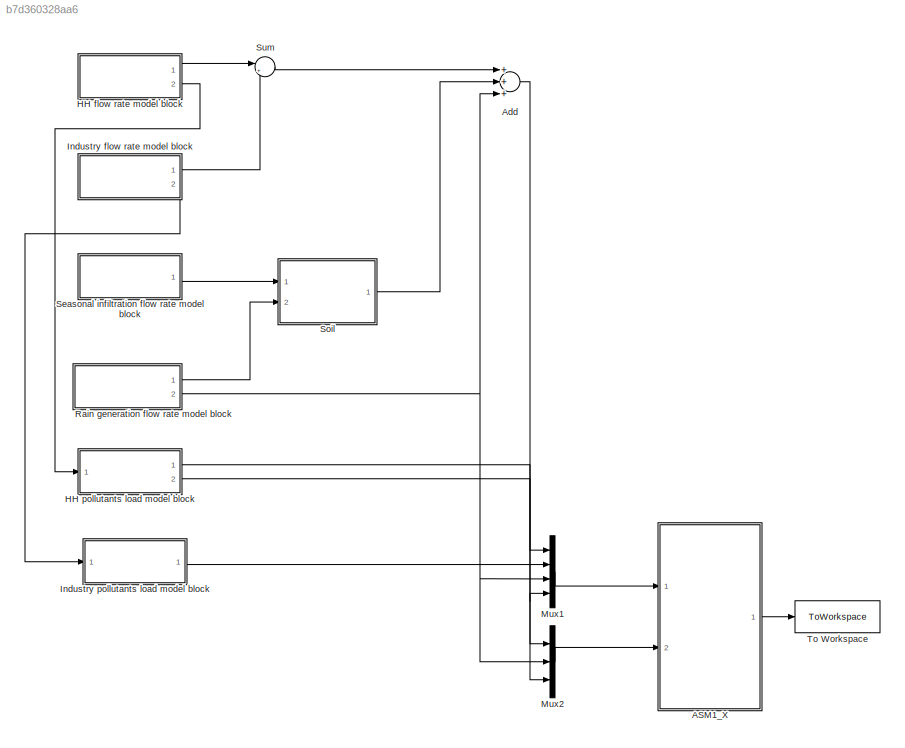
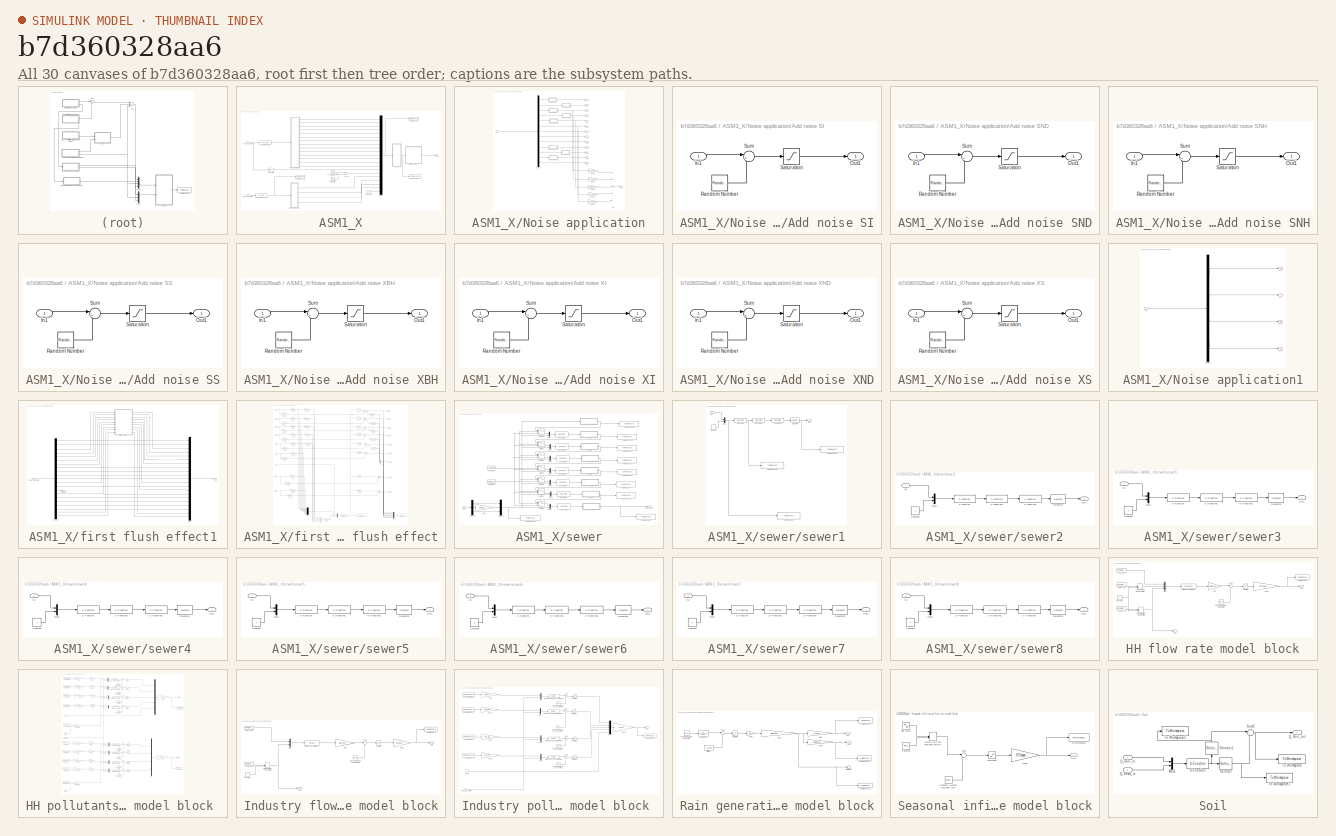
[diagram: thumbnail index - all 30 canvases of the model, root first then tree order]
MODEL slx_b7d360328aa6
KIND model
BLOCK [SubSystem] ASM1_X
  FunctionWithSeparateData = off
  MaskHideContents = off
  MinAlgLoopOccurrences = off
  Opaque = off
  Ports = [2, 1]
  PropExecContextOutsideSubsystem = off
  RTWSystemCode = Auto
  RequestExecContextInheritance = off
BLOCK [S-Function] ASM1_X/ASM1_fractionator
  EnableBusSupport = off
  FunctionName = asm1_fractionation
  Parameters = ASM1_PARS, ASM1_FRACTIONS
  Ports = [1, 1]
BLOCK [S-Function] ASM1_X/BSM1_fractionator1
  EnableBusSupport = off
  FunctionName = asmX_fractionation
  Ports = [1, 1]
BLOCK [Mux] ASM1_X/Mux2
  DisplayOption = bar
  Inputs = 21
  Ports = [21, 1]
BLOCK [SubSystem] ASM1_X/Noise application
  FunctionWithSeparateData = off
  MaskHideContents = off
  MinAlgLoopOccurrences = off
  Opaque = off
  Ports = [1, 14]
  PropExecContextOutsideSubsystem = off
  RTWSystemCode = Auto
  RequestExecContextInheritance = off
BLOCK [SubSystem] ASM1_X/Noise application/Add noise SI
  FunctionWithSeparateData = off
  MaskHideContents = off
  MinAlgLoopOccurrences = off
  Opaque = off
  Ports = [1, 1]
  PropExecContextOutsideSubsystem = off
  RTWSystemCode = Auto
  RequestExecContextInheritance = off
BLOCK [Inport] ASM1_X/Noise application/Add noise SI/In1
  IconDisplay = Port number
BLOCK [Outport] ASM1_X/Noise application/Add noise SI/Out1
  IconDisplay = Port number
BLOCK [RandomNumber] ASM1_X/Noise application/Add noise SI/Random Number
  SampleTime = SI_st
  Seed = SI_ns
  Variance = SI_nv*polnoiseswitch
BLOCK [Saturate] ASM1_X/Noise application/Add noise SI/Saturation
  InputPortMap = u0
  LowerLimit = SI_min
  Ports = [1, 1]
  UpperLimit = SI_max
BLOCK [Sum] ASM1_X/Noise application/Add noise SI/Sum
  IconShape = round
  InputSameDT = off
  Inputs = |++
  OutDataTypeStr = Inherit: Inherit via internal rule
  Ports = [2, 1]
BLOCK [SubSystem] ASM1_X/Noise application/Add noise SND
  FunctionWithSeparateData = off
  MaskHideContents = off
  MinAlgLoopOccurrences = off
  Opaque = off
  Ports = [1, 1]
  PropExecContextOutsideSubsystem = off
  RTWSystemCode = Auto
  RequestExecContextInheritance = off
BLOCK [Inport] ASM1_X/Noise application/Add noise SND/In1
  IconDisplay = Port number
BLOCK [Outport] ASM1_X/Noise application/Add noise SND/Out1
  IconDisplay = Port number
BLOCK [RandomNumber] ASM1_X/Noise application/Add noise SND/Random Number
  SampleTime = SND_st
  Seed = SND_ns
  Variance = SND_nv*polnoiseswitch
BLOCK [Saturate] ASM1_X/Noise application/Add noise SND/Saturation
  InputPortMap = u0
  LowerLimit = SND_min
  Ports = [1, 1]
  UpperLimit = SND_max
BLOCK [Sum] ASM1_X/Noise application/Add noise SND/Sum
  IconShape = round
  InputSameDT = off
  Inputs = |++
  OutDataTypeStr = Inherit: Inherit via internal rule
  Ports = [2, 1]
BLOCK [SubSystem] ASM1_X/Noise application/Add noise SNH
  FunctionWithSeparateData = off
  MaskHideContents = off
  MinAlgLoopOccurrences = off
  Opaque = off
  Ports = [1, 1]
  PropExecContextOutsideSubsystem = off
  RTWSystemCode = Auto
  RequestExecContextInheritance = off
BLOCK [Inport] ASM1_X/Noise application/Add noise SNH/In1
  IconDisplay = Port number
BLOCK [Outport] ASM1_X/Noise application/Add noise SNH/Out1
  IconDisplay = Port number
BLOCK [RandomNumber] ASM1_X/Noise application/Add noise SNH/Random Number
  SampleTime = SNH_st
  Seed = SNH_ns
  Variance = SNH_nv*polnoiseswitch
BLOCK [Saturate] ASM1_X/Noise application/Add noise SNH/Saturation
  InputPortMap = u0
  LowerLimit = SNH_min
  Ports = [1, 1]
  UpperLimit = SNH_max
BLOCK [Sum] ASM1_X/Noise application/Add noise SNH/Sum
  IconShape = round
  InputSameDT = off
  Inputs = |++
  OutDataTypeStr = Inherit: Inherit via internal rule
  Ports = [2, 1]
BLOCK [SubSystem] ASM1_X/Noise application/Add noise SS
  FunctionWithSeparateData = off
  MaskHideContents = off
  MinAlgLoopOccurrences = off
  Opaque = off
  Ports = [1, 1]
  PropExecContextOutsideSubsystem = off
  RTWSystemCode = Auto
  RequestExecContextInheritance = off
BLOCK [Inport] ASM1_X/Noise application/Add noise SS/In1
  IconDisplay = Port number
BLOCK [Outport] ASM1_X/Noise application/Add noise SS/Out1
  IconDisplay = Port number
BLOCK [RandomNumber] ASM1_X/Noise application/Add noise SS/Random Number
  SampleTime = SS_st
  Seed = SS_ns
  Variance = SS_nv*polnoiseswitch
BLOCK [Saturate] ASM1_X/Noise application/Add noise SS/Saturation
  InputPortMap = u0
  LowerLimit = SS_min
  Ports = [1, 1]
  UpperLimit = SS_max
BLOCK [Sum] ASM1_X/Noise application/Add noise SS/Sum
  IconShape = round
  InputSameDT = off
  Inputs = |++
  OutDataTypeStr = Inherit: Inherit via internal rule
  Ports = [2, 1]
BLOCK [SubSystem] ASM1_X/Noise application/Add noise XBH
  FunctionWithSeparateData = off
  MaskHideContents = off
  MinAlgLoopOccurrences = off
  Opaque = off
  Ports = [1, 1]
  PropExecContextOutsideSubsystem = off
  RTWSystemCode = Auto
  RequestExecContextInheritance = off
BLOCK [Inport] ASM1_X/Noise application/Add noise XBH/In1
  IconDisplay = Port number
BLOCK [Outport] ASM1_X/Noise application/Add noise XBH/Out1
  IconDisplay = Port number
BLOCK [RandomNumber] ASM1_X/Noise application/Add noise XBH/Random Number
  SampleTime = XBH_st
  Seed = XBH_ns
  Variance = XBH_nv*polnoiseswitch
BLOCK [Saturate] ASM1_X/Noise application/Add noise XBH/Saturation
  InputPortMap = u0
  LowerLimit = XBH_min
  Ports = [1, 1]
  UpperLimit = XBH_max
BLOCK [Sum] ASM1_X/Noise application/Add noise XBH/Sum
  IconShape = round
  InputSameDT = off
  Inputs = |++
  OutDataTypeStr = Inherit: Inherit via internal rule
  Ports = [2, 1]
BLOCK [SubSystem] ASM1_X/Noise application/Add noise XI
  FunctionWithSeparateData = off
  MaskHideContents = off
  MinAlgLoopOccurrences = off
  Opaque = off
  Ports = [1, 1]
  PropExecContextOutsideSubsystem = off
  RTWSystemCode = Auto
  RequestExecContextInheritance = off
BLOCK [Inport] ASM1_X/Noise application/Add noise XI/In1
  IconDisplay = Port number
BLOCK [Outport] ASM1_X/Noise application/Add noise XI/Out1
  IconDisplay = Port number
BLOCK [RandomNumber] ASM1_X/Noise application/Add noise XI/Random Number
  SampleTime = XI_st
  Seed = XI_ns
  Variance = XI_nv*polnoiseswitch
BLOCK [Saturate] ASM1_X/Noise application/Add noise XI/Saturation
  InputPortMap = u0
  LowerLimit = XI_min
  Ports = [1, 1]
  UpperLimit = XI_max
BLOCK [Sum] ASM1_X/Noise application/Add noise XI/Sum
  IconShape = round
  InputSameDT = off
  Inputs = |++
  OutDataTypeStr = Inherit: Inherit via internal rule
  Ports = [2, 1]
BLOCK [SubSystem] ASM1_X/Noise application/Add noise XND
  FunctionWithSeparateData = off
  MaskHideContents = off
  MinAlgLoopOccurrences = off
  Opaque = off
  Ports = [1, 1]
  PropExecContextOutsideSubsystem = off
  RTWSystemCode = Auto
  RequestExecContextInheritance = off
BLOCK [Inport] ASM1_X/Noise application/Add noise XND/In1
  IconDisplay = Port number
BLOCK [Outport] ASM1_X/Noise application/Add noise XND/Out1
  IconDisplay = Port number
BLOCK [RandomNumber] ASM1_X/Noise application/Add noise XND/Random Number
  SampleTime = XND_st
  Seed = XND_ns
  Variance = XND_nv*polnoiseswitch
BLOCK [Saturate] ASM1_X/Noise application/Add noise XND/Saturation
  InputPortMap = u0
  LowerLimit = XND_min
  Ports = [1, 1]
  UpperLimit = XND_max
BLOCK [Sum] ASM1_X/Noise application/Add noise XND/Sum
  IconShape = round
  InputSameDT = off
  Inputs = |++
  OutDataTypeStr = Inherit: Inherit via internal rule
  Ports = [2, 1]
BLOCK [SubSystem] ASM1_X/Noise application/Add noise XS
  FunctionWithSeparateData = off
  MaskHideContents = off
  MinAlgLoopOccurrences = off
  Opaque = off
  Ports = [1, 1]
  PropExecContextOutsideSubsystem = off
  RTWSystemCode = Auto
  RequestExecContextInheritance = off
BLOCK [Inport] ASM1_X/Noise application/Add noise XS/In1
  IconDisplay = Port number
BLOCK [Outport] ASM1_X/Noise application/Add noise XS/Out1
  IconDisplay = Port number
BLOCK [RandomNumber] ASM1_X/Noise application/Add noise XS/Random Number
  SampleTime = XS_st
  Seed = XS_ns
  Variance = XS_nv*polnoiseswitch
BLOCK [Saturate] ASM1_X/Noise application/Add noise XS/Saturation
  InputPortMap = u0
  LowerLimit = XS_min
  Ports = [1, 1]
  UpperLimit = XS_max
BLOCK [Sum] ASM1_X/Noise application/Add noise XS/Sum
  IconShape = round
  InputSameDT = off
  Inputs = |++
  OutDataTypeStr = Inherit: Inherit via internal rule
  Ports = [2, 1]
BLOCK [Demux] ASM1_X/Noise application/Demux
  DisplayOption = bar
  Outputs = [1 1 1 1 1 1 1 1 1 1 1 1 1]
  Ports = [1, 13]
BLOCK [Gain] ASM1_X/Noise application/Gain18
  Gain = X_I2TSS
  OutDataTypeStr = Inherit: Inherit via internal rule
  ParamDataTypeStr = Inherit: Inherit via internal rule
  SaturateOnIntegerOverflow = off
BLOCK [Gain] ASM1_X/Noise application/Gain19
  Gain = X_S2TSS
  OutDataTypeStr = Inherit: Inherit via internal rule
  ParamDataTypeStr = Inherit: Inherit via internal rule
  SaturateOnIntegerOverflow = off
BLOCK [Gain] ASM1_X/Noise application/Gain20
  Gain = X_BH2TSS
  OutDataTypeStr = Inherit: Inherit via internal rule
  ParamDataTypeStr = Inherit: Inherit via internal rule
  SaturateOnIntegerOverflow = off
BLOCK [Gain] ASM1_X/Noise application/Gain21
  Gain = X_BA2TSS
  OutDataTypeStr = Inherit: Inherit via internal rule
  ParamDataTypeStr = Inherit: Inherit via internal rule
  SaturateOnIntegerOverflow = off
BLOCK [Gain] ASM1_X/Noise application/Gain22
  Gain = X_P2TSS
  OutDataTypeStr = Inherit: Inherit via internal rule
  ParamDataTypeStr = Inherit: Inherit via internal rule
  SaturateOnIntegerOverflow = off
BLOCK [Inport] ASM1_X/Noise application/In1
  IconDisplay = Port number
BLOCK [Outport] ASM1_X/Noise application/SALK
  IconDisplay = Port number
  Port = 13
BLOCK [Outport] ASM1_X/Noise application/SI
  IconDisplay = Port number
BLOCK [Outport] ASM1_X/Noise application/SND
  IconDisplay = Port number
  Port = 11
BLOCK [Outport] ASM1_X/Noise application/SNH
  IconDisplay = Port number
  Port = 10
BLOCK [Outport] ASM1_X/Noise application/SNO
  IconDisplay = Port number
  Port = 9
BLOCK [Outport] ASM1_X/Noise application/SO
  IconDisplay = Port number
  Port = 8
BLOCK [Outport] ASM1_X/Noise application/SS
  IconDisplay = Port number
  Port = 2
BLOCK [Outport] ASM1_X/Noise application/TSS
  IconDisplay = Port number
  Port = 14
BLOCK [Sum] ASM1_X/Noise application/TSS7
  InputSameDT = off
  Inputs = +++++
  OutDataTypeStr = Inherit: Inherit via internal rule
  Ports = [5, 1]
  SaturateOnIntegerOverflow = off
BLOCK [Outport] ASM1_X/Noise application/XBA
  IconDisplay = Port number
  Port = 6
BLOCK [Outport] ASM1_X/Noise application/XBH
  IconDisplay = Port number
  Port = 5
BLOCK [Outport] ASM1_X/Noise application/XI
  IconDisplay = Port number
  Port = 3
BLOCK [Outport] ASM1_X/Noise application/XND
  IconDisplay = Port number
  Port = 12
BLOCK [Outport] ASM1_X/Noise application/XS
  IconDisplay = Port number
  Port = 4
BLOCK [Outport] ASM1_X/Noise application/XU
  IconDisplay = Port number
  Port = 7
BLOCK [SubSystem] ASM1_X/Noise application1
  FunctionWithSeparateData = off
  MaskHideContents = off
  MinAlgLoopOccurrences = off
  Opaque = off
  Ports = [1, 4]
  PropExecContextOutsideSubsystem = off
  RTWSystemCode = Auto
  RequestExecContextInheritance = off
BLOCK [Outport] ASM1_X/Noise application1/C_cj
  IconDisplay = Port number
  Port = 2
BLOCK [Outport] ASM1_X/Noise application1/C_li
  IconDisplay = Port number
BLOCK [Outport] ASM1_X/Noise application1/C_sl
  IconDisplay = Port number
  Port = 3
BLOCK [Outport] ASM1_X/Noise application1/C_sl_i
  IconDisplay = Port number
  Port = 4
BLOCK [Demux] ASM1_X/Noise application1/Demux
  DisplayOption = bar
  Outputs = [1 1 1 1]
  Ports = [1, 4]
BLOCK [Inport] ASM1_X/Noise application1/In1
  IconDisplay = Port number
BLOCK [Sum] ASM1_X/TSS10
  InputSameDT = off
  OutDataTypeStr = Inherit: Inherit via internal rule
  Ports = [2, 1]
  SaturateOnIntegerOverflow = off
BLOCK [ToWorkspace] ASM1_X/To Workspace
  MaxDataPoints = inf
  Ports = [1]
  SampleTime = -1
  VariableName = simout_ASM
BLOCK [ToWorkspace] ASM1_X/To Workspace1
  MaxDataPoints = inf
  Ports = [1]
  SampleTime = -1
  VariableName = simout_ASM2
BLOCK [ToWorkspace] ASM1_X/To Workspace3
  MaxDataPoints = inf
  Ports = [1]
  SampleTime = -1
  VariableName = simout_ASM_stream
BLOCK [Outport] ASM1_X/_out
  IconDisplay = Port number
BLOCK [Sin] ASM1_X/daily variation module
  Amplitude = TdAmp
  Bias = TdBias
  Frequency = TdFreq
  Phase = TdPhase
  Ports = [0, 1]
  SampleTime = 0
BLOCK [Constant] ASM1_X/dummy state 
  Value = 0
BLOCK [SubSystem] ASM1_X/first flush effect1
  FunctionWithSeparateData = off
  MaskHideContents = off
  MinAlgLoopOccurrences = off
  Opaque = off
  Ports = [1, 1]
  PropExecContextOutsideSubsystem = off
  RTWSystemCode = Auto
  RequestExecContextInheritance = off
BLOCK [Demux] ASM1_X/first flush effect1/Demux
  DisplayOption = bar
  Outputs = [1 1 1 1 1 1 1 1 1 1 1 1 1 1 1 1 1 1 1 1 1 ]
  Ports = [1, 21]
BLOCK [Mux] ASM1_X/first flush effect1/Mux2
  DisplayOption = bar
  Inputs = 21
  Ports = [21, 1]
BLOCK [Terminator] ASM1_X/first flush effect1/Terminator
BLOCK [Outport] ASM1_X/first flush effect1/_out
  IconDisplay = Port number
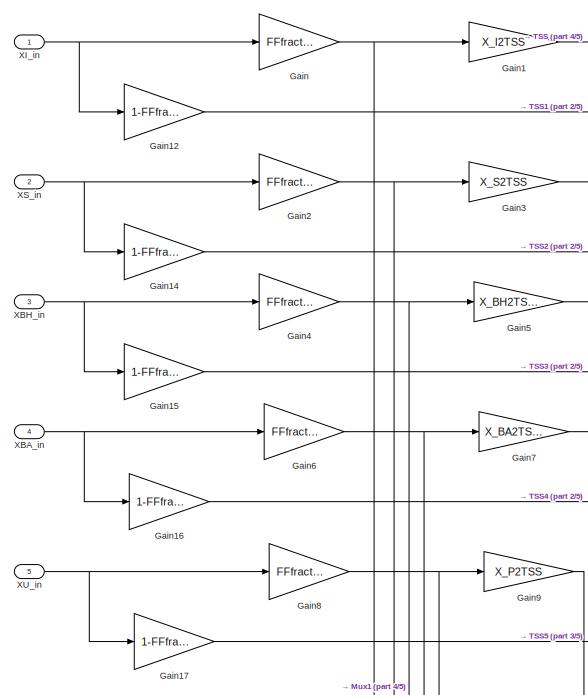
[diagram: ASM1_X/first flush effect1/first flush effect - part 1/5, top left region]
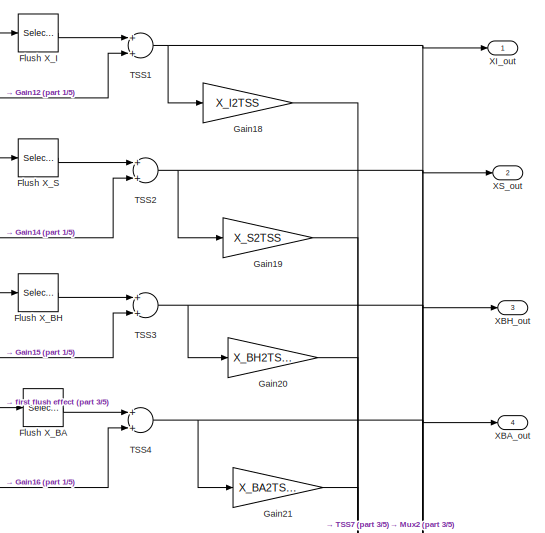
[diagram: ASM1_X/first flush effect1/first flush effect - part 2/5, top right region]
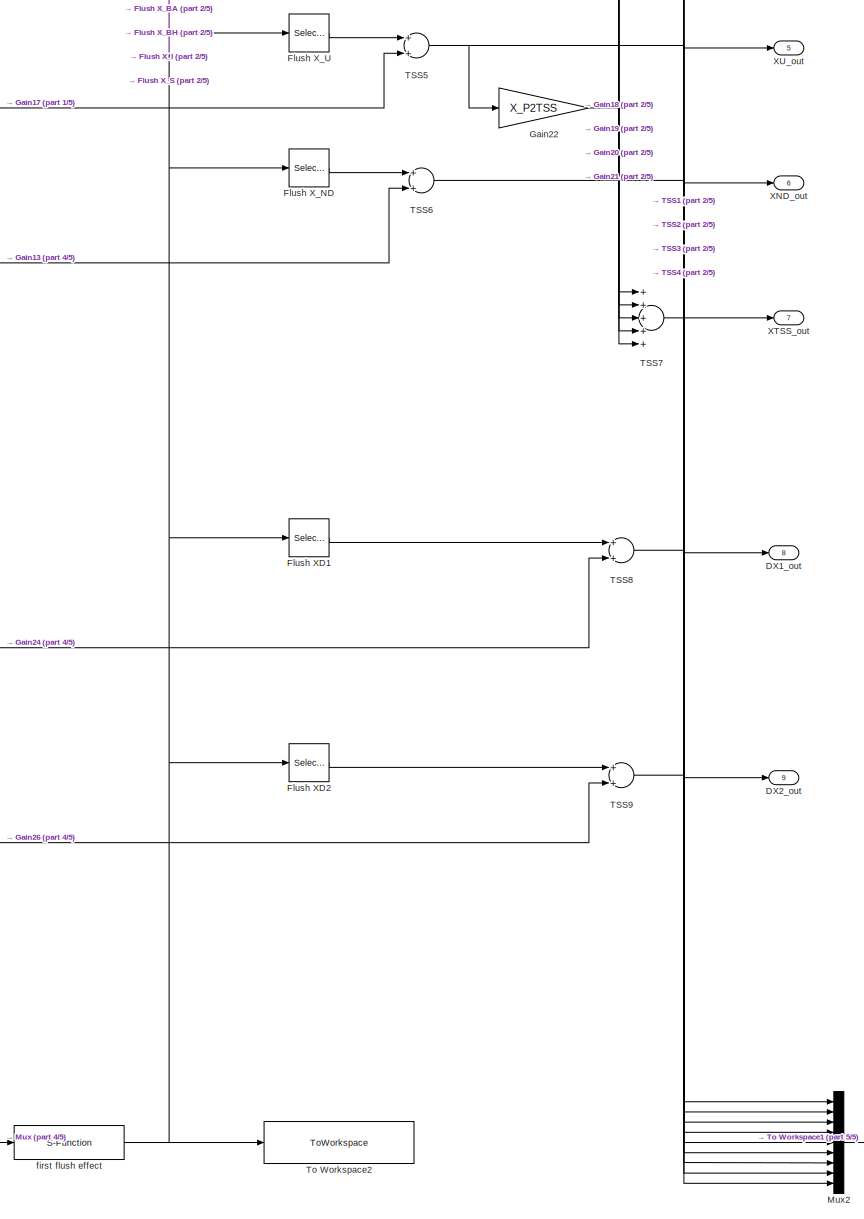
[diagram: ASM1_X/first flush effect1/first flush effect - part 3/5, middle right region]
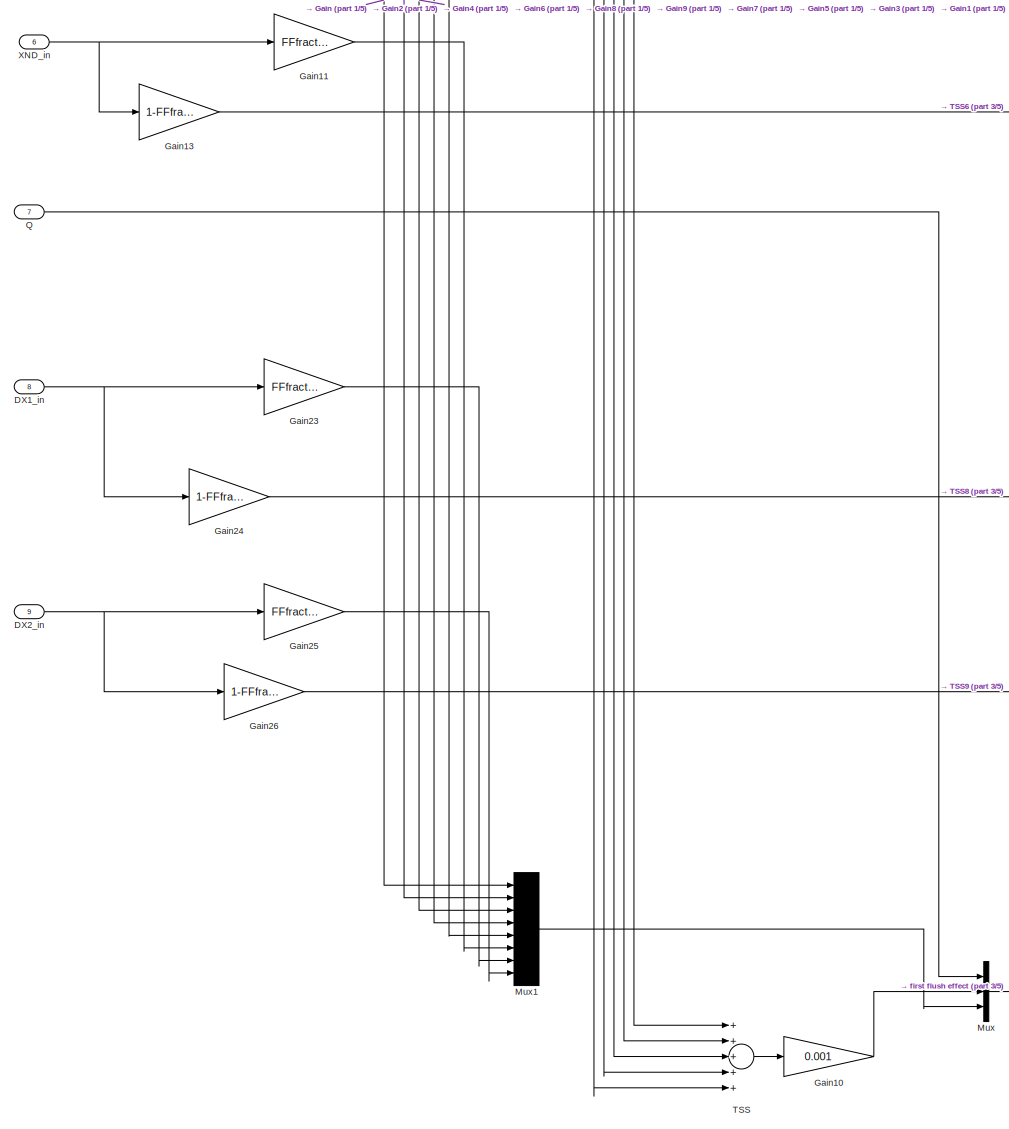
[diagram: ASM1_X/first flush effect1/first flush effect - part 4/5, bottom left region]
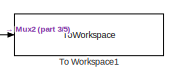
[diagram: ASM1_X/first flush effect1/first flush effect - part 5/5, bottom right region]
BLOCK [SubSystem] ASM1_X/first flush effect1/first flush effect
  FunctionWithSeparateData = off
  MaskHideContents = off
  MinAlgLoopOccurrences = off
  Opaque = off
  Ports = [9, 9]
  PropExecContextOutsideSubsystem = off
  RTWSystemCode = Auto
  RequestExecContextInheritance = off
BLOCK [Inport] ASM1_X/first flush effect1/first flush effect/DX1_in
  IconDisplay = Port number
  Port = 8
BLOCK [Outport] ASM1_X/first flush effect1/first flush effect/DX1_out
  IconDisplay = Port number
  Port = 8
BLOCK [Inport] ASM1_X/first flush effect1/first flush effect/DX2_in
  IconDisplay = Port number
  Port = 9
BLOCK [Outport] ASM1_X/first flush effect1/first flush effect/DX2_out
  IconDisplay = Port number
  Port = 9
BLOCK [Selector] ASM1_X/first flush effect1/first flush effect/Flush XD1
  IndexOptions = Index vector (dialog)
  Indices = [9]
  InputPortWidth = 19
  OutputSizes = 1
  Ports = [1, 1]
BLOCK [Selector] ASM1_X/first flush effect1/first flush effect/Flush XD2
  IndexOptions = Index vector (dialog)
  Indices = [10]
  InputPortWidth = 19
  OutputSizes = 1
  Ports = [1, 1]
BLOCK [Selector] ASM1_X/first flush effect1/first flush effect/Flush X_BA
  IndexOptions = Index vector (dialog)
  Indices = [6]
  InputPortWidth = 19
  OutputSizes = 1
  Ports = [1, 1]
BLOCK [Selector] ASM1_X/first flush effect1/first flush effect/Flush X_BH
  IndexOptions = Index vector (dialog)
  Indices = [5]
  InputPortWidth = 19
  OutputSizes = 1
  Ports = [1, 1]
BLOCK [Selector] ASM1_X/first flush effect1/first flush effect/Flush X_I
  IndexOptions = Index vector (dialog)
  Indices = [3]
  InputPortWidth = 19
  OutputSizes = 1
  Ports = [1, 1]
BLOCK [Selector] ASM1_X/first flush effect1/first flush effect/Flush X_ND
  IndexOptions = Index vector (dialog)
  Indices = [8]
  InputPortWidth = 19
  OutputSizes = 1
  Ports = [1, 1]
BLOCK [Selector] ASM1_X/first flush effect1/first flush effect/Flush X_S
  IndexOptions = Index vector (dialog)
  Indices = [4]
  InputPortWidth = 19
  OutputSizes = 1
  Ports = [1, 1]
BLOCK [Selector] ASM1_X/first flush effect1/first flush effect/Flush X_U
  IndexOptions = Index vector (dialog)
  Indices = [7]
  InputPortWidth = 19
  OutputSizes = 1
  Ports = [1, 1]
BLOCK [Gain] ASM1_X/first flush effect1/first flush effect/Gain
  Gain = FFfraction
  OutDataTypeStr = Inherit: Inherit via internal rule
  ParamDataTypeStr = Inherit: Inherit via internal rule
  SaturateOnIntegerOverflow = off
BLOCK [Gain] ASM1_X/first flush effect1/first flush effect/Gain1
  Gain = X_I2TSS
  OutDataTypeStr = Inherit: Inherit via internal rule
  ParamDataTypeStr = Inherit: Inherit via internal rule
  SaturateOnIntegerOverflow = off
BLOCK [Gain] ASM1_X/first flush effect1/first flush effect/Gain10
  Gain = 0.001
  OutDataTypeStr = Inherit: Inherit via internal rule
  ParamDataTypeStr = Inherit: Inherit via internal rule
  SaturateOnIntegerOverflow = off
BLOCK [Gain] ASM1_X/first flush effect1/first flush effect/Gain11
  Gain = FFfraction
  OutDataTypeStr = Inherit: Inherit via internal rule
  ParamDataTypeStr = Inherit: Inherit via internal rule
  SaturateOnIntegerOverflow = off
BLOCK [Gain] ASM1_X/first flush effect1/first flush effect/Gain12
  Gain = 1-FFfraction
  OutDataTypeStr = Inherit: Inherit via internal rule
  ParamDataTypeStr = Inherit: Inherit via internal rule
  SaturateOnIntegerOverflow = off
BLOCK [Gain] ASM1_X/first flush effect1/first flush effect/Gain13
  Gain = 1-FFfraction
  OutDataTypeStr = Inherit: Inherit via internal rule
  ParamDataTypeStr = Inherit: Inherit via internal rule
  SaturateOnIntegerOverflow = off
BLOCK [Gain] ASM1_X/first flush effect1/first flush effect/Gain14
  Gain = 1-FFfraction
  OutDataTypeStr = Inherit: Inherit via internal rule
  ParamDataTypeStr = Inherit: Inherit via internal rule
  SaturateOnIntegerOverflow = off
BLOCK [Gain] ASM1_X/first flush effect1/first flush effect/Gain15
  Gain = 1-FFfraction
  OutDataTypeStr = Inherit: Inherit via internal rule
  ParamDataTypeStr = Inherit: Inherit via internal rule
  SaturateOnIntegerOverflow = off
BLOCK [Gain] ASM1_X/first flush effect1/first flush effect/Gain16
  Gain = 1-FFfraction
  OutDataTypeStr = Inherit: Inherit via internal rule
  ParamDataTypeStr = Inherit: Inherit via internal rule
  SaturateOnIntegerOverflow = off
BLOCK [Gain] ASM1_X/first flush effect1/first flush effect/Gain17
  Gain = 1-FFfraction
  OutDataTypeStr = Inherit: Inherit via internal rule
  ParamDataTypeStr = Inherit: Inherit via internal rule
  SaturateOnIntegerOverflow = off
BLOCK [Gain] ASM1_X/first flush effect1/first flush effect/Gain18
  Gain = X_I2TSS
  OutDataTypeStr = Inherit: Inherit via internal rule
  ParamDataTypeStr = Inherit: Inherit via internal rule
  SaturateOnIntegerOverflow = off
BLOCK [Gain] ASM1_X/first flush effect1/first flush effect/Gain19
  Gain = X_S2TSS
  OutDataTypeStr = Inherit: Inherit via internal rule
  ParamDataTypeStr = Inherit: Inherit via internal rule
  SaturateOnIntegerOverflow = off
BLOCK [Gain] ASM1_X/first flush effect1/first flush effect/Gain2
  Gain = FFfraction
  OutDataTypeStr = Inherit: Inherit via internal rule
  ParamDataTypeStr = Inherit: Inherit via internal rule
  SaturateOnIntegerOverflow = off
BLOCK [Gain] ASM1_X/first flush effect1/first flush effect/Gain20
  Gain = X_BH2TSS
  OutDataTypeStr = Inherit: Inherit via internal rule
  ParamDataTypeStr = Inherit: Inherit via internal rule
  SaturateOnIntegerOverflow = off
BLOCK [Gain] ASM1_X/first flush effect1/first flush effect/Gain21
  Gain = X_BA2TSS
  OutDataTypeStr = Inherit: Inherit via internal rule
  ParamDataTypeStr = Inherit: Inherit via internal rule
  SaturateOnIntegerOverflow = off
BLOCK [Gain] ASM1_X/first flush effect1/first flush effect/Gain22
  Gain = X_P2TSS
  OutDataTypeStr = Inherit: Inherit via internal rule
  ParamDataTypeStr = Inherit: Inherit via internal rule
  SaturateOnIntegerOverflow = off
BLOCK [Gain] ASM1_X/first flush effect1/first flush effect/Gain23
  Gain = FFfraction
  OutDataTypeStr = Inherit: Inherit via internal rule
  ParamDataTypeStr = Inherit: Inherit via internal rule
  SaturateOnIntegerOverflow = off
BLOCK [Gain] ASM1_X/first flush effect1/first flush effect/Gain24
  Gain = 1-FFfraction
  OutDataTypeStr = Inherit: Inherit via internal rule
  ParamDataTypeStr = Inherit: Inherit via internal rule
  SaturateOnIntegerOverflow = off
BLOCK [Gain] ASM1_X/first flush effect1/first flush effect/Gain25
  Gain = FFfraction
  OutDataTypeStr = Inherit: Inherit via internal rule
  ParamDataTypeStr = Inherit: Inherit via internal rule
  SaturateOnIntegerOverflow = off
BLOCK [Gain] ASM1_X/first flush effect1/first flush effect/Gain26
  Gain = 1-FFfraction
  OutDataTypeStr = Inherit: Inherit via internal rule
  ParamDataTypeStr = Inherit: Inherit via internal rule
  SaturateOnIntegerOverflow = off
BLOCK [Gain] ASM1_X/first flush effect1/first flush effect/Gain3
  Gain = X_S2TSS
  OutDataTypeStr = Inherit: Inherit via internal rule
  ParamDataTypeStr = Inherit: Inherit via internal rule
  SaturateOnIntegerOverflow = off
BLOCK [Gain] ASM1_X/first flush effect1/first flush effect/Gain4
  Gain = FFfraction
  OutDataTypeStr = Inherit: Inherit via internal rule
  ParamDataTypeStr = Inherit: Inherit via internal rule
  SaturateOnIntegerOverflow = off
BLOCK [Gain] ASM1_X/first flush effect1/first flush effect/Gain5
  Gain = X_BH2TSS
  OutDataTypeStr = Inherit: Inherit via internal rule
  ParamDataTypeStr = Inherit: Inherit via internal rule
  SaturateOnIntegerOverflow = off
BLOCK [Gain] ASM1_X/first flush effect1/first flush effect/Gain6
  Gain = FFfraction
  OutDataTypeStr = Inherit: Inherit via internal rule
  ParamDataTypeStr = Inherit: Inherit via internal rule
  SaturateOnIntegerOverflow = off
BLOCK [Gain] ASM1_X/first flush effect1/first flush effect/Gain7
  Gain = X_BA2TSS
  OutDataTypeStr = Inherit: Inherit via internal rule
  ParamDataTypeStr = Inherit: Inherit via internal rule
  SaturateOnIntegerOverflow = off
BLOCK [Gain] ASM1_X/first flush effect1/first flush effect/Gain8
  Gain = FFfraction
  OutDataTypeStr = Inherit: Inherit via internal rule
  ParamDataTypeStr = Inherit: Inherit via internal rule
  SaturateOnIntegerOverflow = off
BLOCK [Gain] ASM1_X/first flush effect1/first flush effect/Gain9
  Gain = X_P2TSS
  OutDataTypeStr = Inherit: Inherit via internal rule
  ParamDataTypeStr = Inherit: Inherit via internal rule
  SaturateOnIntegerOverflow = off
BLOCK [Mux] ASM1_X/first flush effect1/first flush effect/Mux
  DisplayOption = bar
  Inputs = 3
  Ports = [3, 1]
BLOCK [Mux] ASM1_X/first flush effect1/first flush effect/Mux1
  DisplayOption = bar
  Inputs = 8
  Ports = [8, 1]
BLOCK [Mux] ASM1_X/first flush effect1/first flush effect/Mux2
  DisplayOption = bar
  Inputs = 9
  Ports = [9, 1]
BLOCK [Inport] ASM1_X/first flush effect1/first flush effect/Q
  IconDisplay = Port number
  Port = 7
BLOCK [Sum] ASM1_X/first flush effect1/first flush effect/TSS
  InputSameDT = off
  Inputs = +++++
  OutDataTypeStr = Inherit: Inherit via internal rule
  Ports = [5, 1]
  SaturateOnIntegerOverflow = off
BLOCK [Sum] ASM1_X/first flush effect1/first flush effect/TSS1
  InputSameDT = off
  OutDataTypeStr = Inherit: Inherit via internal rule
  Ports = [2, 1]
  SaturateOnIntegerOverflow = off
BLOCK [Sum] ASM1_X/first flush effect1/first flush effect/TSS2
  InputSameDT = off
  OutDataTypeStr = Inherit: Inherit via internal rule
  Ports = [2, 1]
  SaturateOnIntegerOverflow = off
BLOCK [Sum] ASM1_X/first flush effect1/first flush effect/TSS3
  InputSameDT = off
  OutDataTypeStr = Inherit: Inherit via internal rule
  Ports = [2, 1]
  SaturateOnIntegerOverflow = off
BLOCK [Sum] ASM1_X/first flush effect1/first flush effect/TSS4
  InputSameDT = off
  OutDataTypeStr = Inherit: Inherit via internal rule
  Ports = [2, 1]
  SaturateOnIntegerOverflow = off
BLOCK [Sum] ASM1_X/first flush effect1/first flush effect/TSS5
  InputSameDT = off
  OutDataTypeStr = Inherit: Inherit via internal rule
  Ports = [2, 1]
  SaturateOnIntegerOverflow = off
BLOCK [Sum] ASM1_X/first flush effect1/first flush effect/TSS6
  InputSameDT = off
  OutDataTypeStr = Inherit: Inherit via internal rule
  Ports = [2, 1]
  SaturateOnIntegerOverflow = off
BLOCK [Sum] ASM1_X/first flush effect1/first flush effect/TSS7
  InputSameDT = off
  Inputs = +++++
  OutDataTypeStr = Inherit: Inherit via internal rule
  Ports = [5, 1]
  SaturateOnIntegerOverflow = off
BLOCK [Sum] ASM1_X/first flush effect1/first flush effect/TSS8
  InputSameDT = off
  OutDataTypeStr = Inherit: Inherit via internal rule
  Ports = [2, 1]
  SaturateOnIntegerOverflow = off
BLOCK [Sum] ASM1_X/first flush effect1/first flush effect/TSS9
  InputSameDT = off
  OutDataTypeStr = Inherit: Inherit via internal rule
  Ports = [2, 1]
  SaturateOnIntegerOverflow = off
BLOCK [ToWorkspace] ASM1_X/first flush effect1/first flush effect/To Workspace1
  MaxDataPoints = inf
  Ports = [1]
  SampleTime = -1
  VariableName = firstflush_effectASM1
BLOCK [ToWorkspace] ASM1_X/first flush effect1/first flush effect/To Workspace2
  MaxDataPoints = inf
  Ports = [1]
  SampleTime = -1
  VariableName = firstflush_effectASM_total
BLOCK [Inport] ASM1_X/first flush effect1/first flush effect/XBA_in
  IconDisplay = Port number
  Port = 4
BLOCK [Outport] ASM1_X/first flush effect1/first flush effect/XBA_out
  IconDisplay = Port number
  Port = 4
BLOCK [Inport] ASM1_X/first flush effect1/first flush effect/XBH_in
  IconDisplay = Port number
  Port = 3
BLOCK [Outport] ASM1_X/first flush effect1/first flush effect/XBH_out
  IconDisplay = Port number
  Port = 3
BLOCK [Inport] ASM1_X/first flush effect1/first flush effect/XI_in
  IconDisplay = Port number
BLOCK [Outport] ASM1_X/first flush effect1/first flush effect/XI_out
  IconDisplay = Port number
BLOCK [Inport] ASM1_X/first flush effect1/first flush effect/XND_in
  IconDisplay = Port number
  Port = 6
BLOCK [Outport] ASM1_X/first flush effect1/first flush effect/XND_out
  IconDisplay = Port number
  Port = 6
BLOCK [Inport] ASM1_X/first flush effect1/first flush effect/XS_in
  IconDisplay = Port number
  Port = 2
BLOCK [Outport] ASM1_X/first flush effect1/first flush effect/XS_out
  IconDisplay = Port number
  Port = 2
BLOCK [Outport] ASM1_X/first flush effect1/first flush effect/XTSS_out
  IconDisplay = Port number
  Port = 7
BLOCK [Inport] ASM1_X/first flush effect1/first flush effect/XU_in
  IconDisplay = Port number
  Port = 5
BLOCK [Outport] ASM1_X/first flush effect1/first flush effect/XU_out
  IconDisplay = Port number
  Port = 5
BLOCK [S-Function] ASM1_X/first flush effect1/first flush effect/first flush effect
  EnableBusSupport = off
  FunctionName = firstflush_ASM1
  Parameters = ASM1_XINIT, SSPARS
  Ports = [1, 1]
BLOCK [Inport] ASM1_X/first flush effect1/yearly_indS profile
  IconDisplay = Port number
BLOCK [Selector] ASM1_X/influent flow
  IndexOptions = Index vector (dialog)
  Indices = [12]
  InputPortWidth = 12
  OutputSizes = 1
  Ports = [1, 1]
BLOCK [Sin] ASM1_X/seasonal variation module
  Amplitude = TAmp
  Bias = TBias
  Frequency = TFreq
  Phase = TPhase
  Ports = [0, 1]
  SampleTime = 0
BLOCK [SubSystem] ASM1_X/sewer
  FunctionWithSeparateData = off
  MaskHideContents = off
  MinAlgLoopOccurrences = off
  Opaque = off
  Ports = [1, 1]
  PropExecContextOutsideSubsystem = off
  RTWSystemCode = Auto
  RequestExecContextInheritance = off
BLOCK [Demux] ASM1_X/sewer/Demux1
  Outputs = [14 1 6]
  Ports = [1, 3]
BLOCK [Gain] ASM1_X/sewer/Gain
  Gain = 1/subarea
  OutDataTypeStr = Inherit: Inherit via internal rule
  ParamDataTypeStr = Inherit: Inherit via internal rule
  SaturateOnIntegerOverflow = off
BLOCK [Inport] ASM1_X/sewer/In1
  IconDisplay = Port number
BLOCK [Mux] ASM1_X/sewer/Mux1
  DisplayOption = bar
  Inputs = 2
  Ports = [2, 1]
BLOCK [Mux] ASM1_X/sewer/Mux10
  DisplayOption = bar
  Inputs = 3
  Ports = [3, 1]
BLOCK [Mux] ASM1_X/sewer/Mux2
  DisplayOption = bar
  Inputs = 2
  Ports = [2, 1]
BLOCK [Mux] ASM1_X/sewer/Mux3
  DisplayOption = bar
  Inputs = 2
  Ports = [2, 1]
BLOCK [Mux] ASM1_X/sewer/Mux4
  DisplayOption = bar
  Inputs = 2
  Ports = [2, 1]
BLOCK [Mux] ASM1_X/sewer/Mux5
  DisplayOption = bar
  Inputs = 2
  Ports = [2, 1]
BLOCK [Mux] ASM1_X/sewer/Mux6
  DisplayOption = bar
  Inputs = 2
  Ports = [2, 1]
BLOCK [Mux] ASM1_X/sewer/Mux7
  DisplayOption = bar
  Inputs = 2
  Ports = [2, 1]
BLOCK [S-Function] ASM1_X/sewer/S-Function
  EnableBusSupport = off
  FunctionName = asm1_combiner
  Ports = [1, 1]
BLOCK [S-Function] ASM1_X/sewer/S-Function1
  EnableBusSupport = off
  FunctionName = asm1_combiner
  Ports = [1, 1]
BLOCK [S-Function] ASM1_X/sewer/S-Function2
  EnableBusSupport = off
  FunctionName = asm1_combiner
  Ports = [1, 1]
BLOCK [S-Function] ASM1_X/sewer/S-Function3
  EnableBusSupport = off
  FunctionName = asm1_combiner
  Ports = [1, 1]
BLOCK [S-Function] ASM1_X/sewer/S-Function4
  EnableBusSupport = off
  FunctionName = asm1_combiner
  Ports = [1, 1]
BLOCK [S-Function] ASM1_X/sewer/S-Function5
  EnableBusSupport = off
  FunctionName = asm1_combiner
  Ports = [1, 1]
BLOCK [S-Function] ASM1_X/sewer/S-Function6
  EnableBusSupport = off
  FunctionName = asm1_combiner
  Ports = [1, 1]
BLOCK [Switch] ASM1_X/sewer/Switch1
  InputSameDT = off
  Threshold = 3
BLOCK [Switch] ASM1_X/sewer/Switch2
  InputSameDT = off
  Threshold = 4
BLOCK [Switch] ASM1_X/sewer/Switch3
  InputSameDT = off
  Threshold = 5
BLOCK [Switch] ASM1_X/sewer/Switch4
  InputSameDT = off
  Threshold = 6
BLOCK [Switch] ASM1_X/sewer/Switch5
  InputSameDT = off
  Threshold = 7
BLOCK [Switch] ASM1_X/sewer/Switch6
  InputSameDT = off
  Threshold = 8
BLOCK [Switch] ASM1_X/sewer/Switch7
  InputSameDT = off
  Threshold = 3
BLOCK [ToWorkspace] ASM1_X/sewer/To Workspace1
  MaxDataPoints = inf
  Ports = [1]
  SampleTime = -1
  VariableName = sewer_ASM1
BLOCK [ToWorkspace] ASM1_X/sewer/To Workspace2
  MaxDataPoints = inf
  Ports = [1]
  SampleTime = -1
  VariableName = sewer_ASM
BLOCK [ToWorkspace] ASM1_X/sewer/To Workspace3
  MaxDataPoints = inf
  Ports = [1]
  SampleTime = -1
  VariableName = sewer_ASM5
BLOCK [ToWorkspace] ASM1_X/sewer/To Workspace4
  MaxDataPoints = inf
  Ports = [1]
  SampleTime = -1
  VariableName = sewer_ASM6
BLOCK [ToWorkspace] ASM1_X/sewer/To Workspace5
  MaxDataPoints = inf
  Ports = [1]
  SampleTime = -1
  VariableName = sewer_ASM7
BLOCK [ToWorkspace] ASM1_X/sewer/To Workspace6
  MaxDataPoints = inf
  Ports = [1]
  SampleTime = -1
  VariableName = sewer_ASM8
BLOCK [ToWorkspace] ASM1_X/sewer/To Workspace7
  MaxDataPoints = inf
  Ports = [1]
  SampleTime = -1
  VariableName = sewer_ASM9
BLOCK [ToWorkspace] ASM1_X/sewer/To Workspace8
  MaxDataPoints = inf
  Ports = [1]
  SampleTime = -1
  VariableName = sewer_ASM10
BLOCK [ToWorkspace] ASM1_X/sewer/To Workspace9
  MaxDataPoints = inf
  Ports = [1]
  SampleTime = -1
  VariableName = sewer_ASM11
BLOCK [Outport] ASM1_X/sewer/output sewer
  IconDisplay = Port number
BLOCK [SubSystem] ASM1_X/sewer/sewer1
  FunctionWithSeparateData = off
  MaskHideContents = off
  MinAlgLoopOccurrences = off
  Opaque = off
  Ports = [1, 1]
  PropExecContextOutsideSubsystem = off
  RTWSystemCode = Auto
  RequestExecContextInheritance = off
BLOCK [Constant] ASM1_X/sewer/sewer1/Constant
BLOCK [Inport] ASM1_X/sewer/sewer1/In1
  IconDisplay = Port number
BLOCK [Mux] ASM1_X/sewer/sewer1/Mux1
  DisplayOption = bar
  Inputs = 2
  Ports = [2, 1]
BLOCK [Outport] ASM1_X/sewer/sewer1/Out1
  IconDisplay = Port number
BLOCK [S-Function] ASM1_X/sewer/sewer1/S-Function
  EnableBusSupport = off
  FunctionName = sewer_asm1
  Parameters = ASM1_SEWERINIT, ASM1_PARS, SPAR, SOSAT, ASMX, KLa
  Ports = [1, 1]
BLOCK [S-Function] ASM1_X/sewer/sewer1/S-Function1
  EnableBusSupport = off
  FunctionName = sewer_asm1
  Parameters = ASM1_SEWERINIT, ASM1_PARS, SPAR, SOSAT, ASMX, KLa
  Ports = [1, 1]
BLOCK [S-Function] ASM1_X/sewer/sewer1/S-Function2
  EnableBusSupport = off
  FunctionName = sewer_asm1
  Parameters = ASM1_SEWERINIT, ASM1_PARS, SPAR, SOSAT, ASMX, KLa
  Ports = [1, 1]
BLOCK [Selector] ASM1_X/sewer/sewer1/Selector9
  IndexOptions = Index vector (dialog)
  Indices = [1 2 3 4 5 6 7 8 9 10 11 12 13 14 15 16 17 18 19 20 21]
  InputPortWidth = 22
  OutputSizes = 1
  Ports = [1, 1]
BLOCK [ToWorkspace] ASM1_X/sewer/sewer1/To Workspace1
  MaxDataPoints = inf
  Ports = [1]
  SampleTime = -1
  VariableName = sewer_ASM3
BLOCK [ToWorkspace] ASM1_X/sewer/sewer1/To Workspace2
  MaxDataPoints = inf
  Ports = [1]
  SampleTime = -1
  VariableName = sewer_ASM2
BLOCK [ToWorkspace] ASM1_X/sewer/sewer1/To Workspace3
  MaxDataPoints = inf
  Ports = [1]
  SampleTime = -1
  VariableName = sewer_ASM4
BLOCK [SubSystem] ASM1_X/sewer/sewer2
  FunctionWithSeparateData = off
  MaskHideContents = off
  MinAlgLoopOccurrences = off
  Opaque = off
  Ports = [1, 1]
  PropExecContextOutsideSubsystem = off
  RTWSystemCode = Auto
  RequestExecContextInheritance = off
BLOCK [Constant] ASM1_X/sewer/sewer2/Constant
BLOCK [Inport] ASM1_X/sewer/sewer2/In1
  IconDisplay = Port number
BLOCK [Mux] ASM1_X/sewer/sewer2/Mux1
  DisplayOption = bar
  Inputs = 2
  Ports = [2, 1]
BLOCK [Outport] ASM1_X/sewer/sewer2/Out1
  IconDisplay = Port number
BLOCK [S-Function] ASM1_X/sewer/sewer2/S-Function
  EnableBusSupport = off
  FunctionName = sewer_asm1
  Parameters = ASM1_SEWERINIT, ASM1_PARS, SPAR, SOSAT, ASMX, KLa
  Ports = [1, 1]
BLOCK [S-Function] ASM1_X/sewer/sewer2/S-Function1
  EnableBusSupport = off
  FunctionName = sewer_asm1
  Parameters = ASM1_SEWERINIT, ASM1_PARS, SPAR, SOSAT, ASMX, KLa
  Ports = [1, 1]
BLOCK [S-Function] ASM1_X/sewer/sewer2/S-Function2
  EnableBusSupport = off
  FunctionName = sewer_asm1
  Parameters = ASM1_SEWERINIT, ASM1_PARS, SPAR, SOSAT, ASMX, KLa
  Ports = [1, 1]
BLOCK [Selector] ASM1_X/sewer/sewer2/Selector9
  IndexOptions = Index vector (dialog)
  Indices = [1 2 3 4 5 6 7 8 9 10 11 12 13 14 15 16 17 18 19 20 21]
  InputPortWidth = 22
  OutputSizes = 1
  Ports = [1, 1]
BLOCK [SubSystem] ASM1_X/sewer/sewer3
  FunctionWithSeparateData = off
  MaskHideContents = off
  MinAlgLoopOccurrences = off
  Opaque = off
  Ports = [1, 1]
  PropExecContextOutsideSubsystem = off
  RTWSystemCode = Auto
  RequestExecContextInheritance = off
BLOCK [Constant] ASM1_X/sewer/sewer3/Constant
BLOCK [Inport] ASM1_X/sewer/sewer3/In1
  IconDisplay = Port number
BLOCK [Mux] ASM1_X/sewer/sewer3/Mux1
  DisplayOption = bar
  Inputs = 2
  Ports = [2, 1]
BLOCK [Outport] ASM1_X/sewer/sewer3/Out1
  IconDisplay = Port number
BLOCK [S-Function] ASM1_X/sewer/sewer3/S-Function
  EnableBusSupport = off
  FunctionName = sewer_asm1
  Parameters = ASM1_SEWERINIT, ASM1_PARS, SPAR, SOSAT, ASMX, KLa
  Ports = [1, 1]
BLOCK [S-Function] ASM1_X/sewer/sewer3/S-Function1
  EnableBusSupport = off
  FunctionName = sewer_asm1
  Parameters = ASM1_SEWERINIT, ASM1_PARS, SPAR, SOSAT, ASMX, KLa
  Ports = [1, 1]
BLOCK [S-Function] ASM1_X/sewer/sewer3/S-Function2
  EnableBusSupport = off
  FunctionName = sewer_asm1
  Parameters = ASM1_SEWERINIT, ASM1_PARS, SPAR, SOSAT, ASMX, KLa
  Ports = [1, 1]
BLOCK [Selector] ASM1_X/sewer/sewer3/Selector9
  IndexOptions = Index vector (dialog)
  Indices = [1 2 3 4 5 6 7 8 9 10 11 12 13 14 15 16 17 18 19 20 21]
  InputPortWidth = 22
  OutputSizes = 1
  Ports = [1, 1]
BLOCK [SubSystem] ASM1_X/sewer/sewer4
  FunctionWithSeparateData = off
  MaskHideContents = off
  MinAlgLoopOccurrences = off
  Opaque = off
  Ports = [1, 1]
  PropExecContextOutsideSubsystem = off
  RTWSystemCode = Auto
  RequestExecContextInheritance = off
BLOCK [Constant] ASM1_X/sewer/sewer4/Constant
BLOCK [Inport] ASM1_X/sewer/sewer4/In1
  IconDisplay = Port number
BLOCK [Mux] ASM1_X/sewer/sewer4/Mux1
  DisplayOption = bar
  Inputs = 2
  Ports = [2, 1]
BLOCK [Outport] ASM1_X/sewer/sewer4/Out1
  IconDisplay = Port number
BLOCK [S-Function] ASM1_X/sewer/sewer4/S-Function
  EnableBusSupport = off
  FunctionName = sewer_asm1
  Parameters = ASM1_SEWERINIT, ASM1_PARS, SPAR, SOSAT, ASMX, KLa
  Ports = [1, 1]
BLOCK [S-Function] ASM1_X/sewer/sewer4/S-Function1
  EnableBusSupport = off
  FunctionName = sewer_asm1
  Parameters = ASM1_SEWERINIT, ASM1_PARS, SPAR, SOSAT, ASMX, KLa
  Ports = [1, 1]
BLOCK [S-Function] ASM1_X/sewer/sewer4/S-Function2
  EnableBusSupport = off
  FunctionName = sewer_asm1
  Parameters = ASM1_SEWERINIT, ASM1_PARS, SPAR, SOSAT, ASMX, KLa
  Ports = [1, 1]
BLOCK [Selector] ASM1_X/sewer/sewer4/Selector9
  IndexOptions = Index vector (dialog)
  Indices = [1 2 3 4 5 6 7 8 9 10 11 12 13 14 15 16 17 18 19 20 21]
  InputPortWidth = 22
  OutputSizes = 1
  Ports = [1, 1]
BLOCK [SubSystem] ASM1_X/sewer/sewer5
  FunctionWithSeparateData = off
  MaskHideContents = off
  MinAlgLoopOccurrences = off
  Opaque = off
  Ports = [1, 1]
  PropExecContextOutsideSubsystem = off
  RTWSystemCode = Auto
  RequestExecContextInheritance = off
BLOCK [Constant] ASM1_X/sewer/sewer5/Constant
BLOCK [Inport] ASM1_X/sewer/sewer5/In1
  IconDisplay = Port number
BLOCK [Mux] ASM1_X/sewer/sewer5/Mux1
  DisplayOption = bar
  Inputs = 2
  Ports = [2, 1]
BLOCK [Outport] ASM1_X/sewer/sewer5/Out1
  IconDisplay = Port number
BLOCK [S-Function] ASM1_X/sewer/sewer5/S-Function
  EnableBusSupport = off
  FunctionName = sewer_asm1
  Parameters = ASM1_SEWERINIT, ASM1_PARS, SPAR, SOSAT, ASMX, KLa
  Ports = [1, 1]
BLOCK [S-Function] ASM1_X/sewer/sewer5/S-Function1
  EnableBusSupport = off
  FunctionName = sewer_asm1
  Parameters = ASM1_SEWERINIT, ASM1_PARS, SPAR, SOSAT, ASMX, KLa
  Ports = [1, 1]
BLOCK [S-Function] ASM1_X/sewer/sewer5/S-Function2
  EnableBusSupport = off
  FunctionName = sewer_asm1
  Parameters = ASM1_SEWERINIT, ASM1_PARS, SPAR, SOSAT, ASMX, KLa
  Ports = [1, 1]
BLOCK [Selector] ASM1_X/sewer/sewer5/Selector9
  IndexOptions = Index vector (dialog)
  Indices = [1 2 3 4 5 6 7 8 9 10 11 12 13 14 15 16 17 18 19 20 21]
  InputPortWidth = 22
  OutputSizes = 1
  Ports = [1, 1]
BLOCK [SubSystem] ASM1_X/sewer/sewer6
  FunctionWithSeparateData = off
  MaskHideContents = off
  MinAlgLoopOccurrences = off
  Opaque = off
  Ports = [1, 1]
  PropExecContextOutsideSubsystem = off
  RTWSystemCode = Auto
  RequestExecContextInheritance = off
BLOCK [Constant] ASM1_X/sewer/sewer6/Constant
BLOCK [Inport] ASM1_X/sewer/sewer6/In1
  IconDisplay = Port number
BLOCK [Mux] ASM1_X/sewer/sewer6/Mux1
  DisplayOption = bar
  Inputs = 2
  Ports = [2, 1]
BLOCK [Outport] ASM1_X/sewer/sewer6/Out1
  IconDisplay = Port number
BLOCK [S-Function] ASM1_X/sewer/sewer6/S-Function
  EnableBusSupport = off
  FunctionName = sewer_asm1
  Parameters = ASM1_SEWERINIT, ASM1_PARS, SPAR, SOSAT, ASMX, KLa
  Ports = [1, 1]
BLOCK [S-Function] ASM1_X/sewer/sewer6/S-Function1
  EnableBusSupport = off
  FunctionName = sewer_asm1
  Parameters = ASM1_SEWERINIT, ASM1_PARS, SPAR, SOSAT, ASMX, KLa
  Ports = [1, 1]
BLOCK [S-Function] ASM1_X/sewer/sewer6/S-Function2
  EnableBusSupport = off
  FunctionName = sewer_asm1
  Parameters = ASM1_SEWERINIT, ASM1_PARS, SPAR, SOSAT, ASMX, KLa
  Ports = [1, 1]
BLOCK [Selector] ASM1_X/sewer/sewer6/Selector9
  IndexOptions = Index vector (dialog)
  Indices = [1 2 3 4 5 6 7 8 9 10 11 12 13 14 15 16 17 18 19 20 21]
  InputPortWidth = 22
  OutputSizes = 1
  Ports = [1, 1]
BLOCK [SubSystem] ASM1_X/sewer/sewer7
  FunctionWithSeparateData = off
  MaskHideContents = off
  MinAlgLoopOccurrences = off
  Opaque = off
  Ports = [1, 1]
  PropExecContextOutsideSubsystem = off
  RTWSystemCode = Auto
  RequestExecContextInheritance = off
BLOCK [Constant] ASM1_X/sewer/sewer7/Constant
BLOCK [Inport] ASM1_X/sewer/sewer7/In1
  IconDisplay = Port number
BLOCK [Mux] ASM1_X/sewer/sewer7/Mux1
  DisplayOption = bar
  Inputs = 2
  Ports = [2, 1]
BLOCK [Outport] ASM1_X/sewer/sewer7/Out1
  IconDisplay = Port number
BLOCK [S-Function] ASM1_X/sewer/sewer7/S-Function
  EnableBusSupport = off
  FunctionName = sewer_asm1
  Parameters = ASM1_SEWERINIT, ASM1_PARS, SPAR, SOSAT, ASMX, KLa
  Ports = [1, 1]
BLOCK [S-Function] ASM1_X/sewer/sewer7/S-Function1
  EnableBusSupport = off
  FunctionName = sewer_asm1
  Parameters = ASM1_SEWERINIT, ASM1_PARS, SPAR, SOSAT, ASMX, KLa
  Ports = [1, 1]
BLOCK [S-Function] ASM1_X/sewer/sewer7/S-Function2
  EnableBusSupport = off
  FunctionName = sewer_asm1
  Parameters = ASM1_SEWERINIT, ASM1_PARS, SPAR, SOSAT, ASMX, KLa
  Ports = [1, 1]
BLOCK [Selector] ASM1_X/sewer/sewer7/Selector9
  IndexOptions = Index vector (dialog)
  Indices = [1 2 3 4 5 6 7 8 9 10 11 12 13 14 15 16 17 18 19 20 21]
  InputPortWidth = 22
  OutputSizes = 1
  Ports = [1, 1]
BLOCK [SubSystem] ASM1_X/sewer/sewer8
  FunctionWithSeparateData = off
  MaskHideContents = off
  MinAlgLoopOccurrences = off
  Opaque = off
  Ports = [1, 1]
  PropExecContextOutsideSubsystem = off
  RTWSystemCode = Auto
  RequestExecContextInheritance = off
BLOCK [Constant] ASM1_X/sewer/sewer8/Constant
BLOCK [Inport] ASM1_X/sewer/sewer8/In1
  IconDisplay = Port number
BLOCK [Mux] ASM1_X/sewer/sewer8/Mux1
  DisplayOption = bar
  Inputs = 2
  Ports = [2, 1]
BLOCK [Outport] ASM1_X/sewer/sewer8/Out1
  IconDisplay = Port number
BLOCK [S-Function] ASM1_X/sewer/sewer8/S-Function
  EnableBusSupport = off
  FunctionName = sewer_asm1
  Parameters = ASM1_SEWERINIT, ASM1_PARS, SPAR, SOSAT, ASMX, KLa
  Ports = [1, 1]
BLOCK [S-Function] ASM1_X/sewer/sewer8/S-Function1
  EnableBusSupport = off
  FunctionName = sewer_asm1
  Parameters = ASM1_SEWERINIT, ASM1_PARS, SPAR, SOSAT, ASMX, KLa
  Ports = [1, 1]
BLOCK [S-Function] ASM1_X/sewer/sewer8/S-Function2
  EnableBusSupport = off
  FunctionName = sewer_asm1
  Parameters = ASM1_SEWERINIT, ASM1_PARS, SPAR, SOSAT, ASMX, KLa
  Ports = [1, 1]
BLOCK [Selector] ASM1_X/sewer/sewer8/Selector9
  IndexOptions = Index vector (dialog)
  Indices = [1 2 3 4 5 6 7 8 9 10 11 12 13 14 15 16 17 18 19 20 21]
  InputPortWidth = 22
  OutputSizes = 1
  Ports = [1, 1]
BLOCK [Constant] ASM1_X/sewer/subarea
  Value = subarea
BLOCK [Constant] ASM1_X/sewer/subarea1
  Value = zeros (1,21)
BLOCK [Inport] ASM1_X/yearly_indS profile
  IconDisplay = Port number
BLOCK [Inport] ASM1_X/yearly_indS profile1
  IconDisplay = Port number
  Port = 2
BLOCK [Sum] Add
  InputSameDT = off
  Inputs = +++
  OutDataTypeStr = Inherit: Inherit via internal rule
  Ports = [3, 1]
  SaturateOnIntegerOverflow = off
BLOCK [SubSystem] HH flow rate model block
  FunctionWithSeparateData = off
  MaskHideContents = off
  MinAlgLoopOccurrences = off
  Opaque = off
  Ports = [0, 2]
  PropExecContextOutsideSubsystem = off
  RTWSystemCode = Auto
  RequestExecContextInheritance = off
BLOCK [Constant] HH flow rate model block/Constant
BLOCK [Gain] HH flow rate model block/Gain
  Gain = QperPE
  OutDataTypeStr = Inherit: Inherit via internal rule
  ParamDataTypeStr = Inherit: Inherit via internal rule
  SaturateOnIntegerOverflow = off
BLOCK [Gain] HH flow rate model block/Gain1
  Gain = PE*HHpopswitch /100
  OutDataTypeStr = Inherit: Inherit via internal rule
  ParamDataTypeStr = Inherit: Inherit via internal rule
  SaturateOnIntegerOverflow = off
BLOCK [Mux] HH flow rate model block/Mux
  DisplayOption = bar
  Inputs = 3
  Ports = [3, 1]
BLOCK [Outport] HH flow rate model block/Out1
  IconDisplay = Port number
BLOCK [Outport] HH flow rate model block/Out2
  IconDisplay = Port number
  Port = 2
BLOCK [RandomNumber] HH flow rate model block/Random Number  HH Flow rate
  SampleTime = Q_HH_st
  Seed = Q_HH_ns
  Variance = Q_HH_nv*HHnoiseswitch
BLOCK [Saturate] HH flow rate model block/Saturation
  InputPortMap = u0
  LowerLimit = QHHsatmin
  Ports = [1, 1]
  UpperLimit = QHHsatmax
BLOCK [Sum] HH flow rate model block/Sum
  IconShape = round
  InputSameDT = off
  Inputs = |++
  OutDataTypeStr = Inherit: Inherit via internal rule
  Ports = [2, 1]
  SaturateOnIntegerOverflow = off
BLOCK [ToWorkspace] HH flow rate model block/To Workspace
  MaxDataPoints = inf
  Ports = [1]
  SampleTime = -1
  VariableName = HS_flowrate
BLOCK [FromWorkspace] HH flow rate model block/day_HH
  Interpolate = off
  OutputAfterFinalValue = Cyclic repetition
  SampleTime = 1/24
  VariableName = day_HS
BLOCK [Fcn] HH flow rate model block/multiply HH contributions
  Expr = u(1)*u(2)*u(3)
BLOCK [ManualSwitch] HH flow rate model block/switch ON//OFF weekly pattern
BLOCK [ManualSwitch] HH flow rate model block/switch ON//OFF yearly pattern
BLOCK [FromWorkspace] HH flow rate model block/week_HH
  Interpolate = off
  OutputAfterFinalValue = Cyclic repetition
  SampleTime = 1
  VariableName = week_HS
BLOCK [FromWorkspace] HH flow rate model block/yearly_HH
  Interpolate = off
  OutputAfterFinalValue = Cyclic repetition
  SampleTime = 1
  VariableName = year_HS
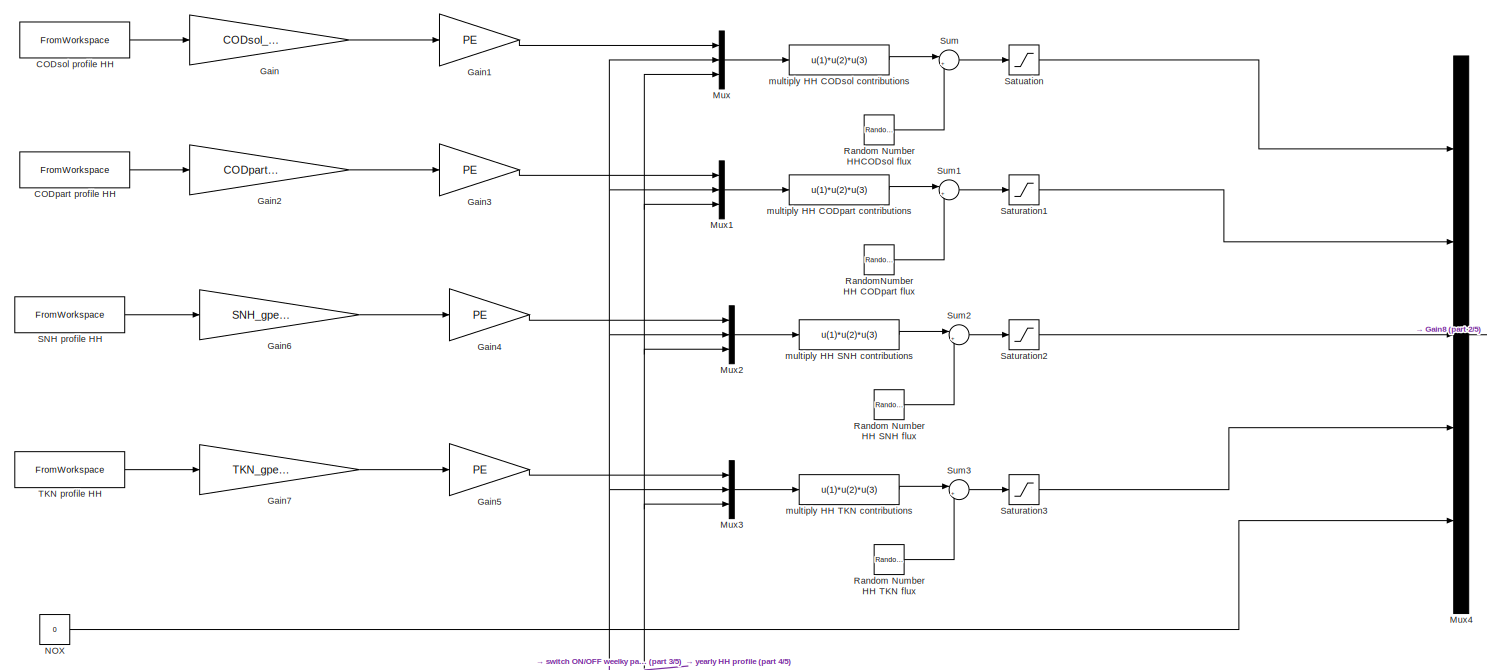
[diagram: HH pollutants load model block  - part 1/5, full width, top band]
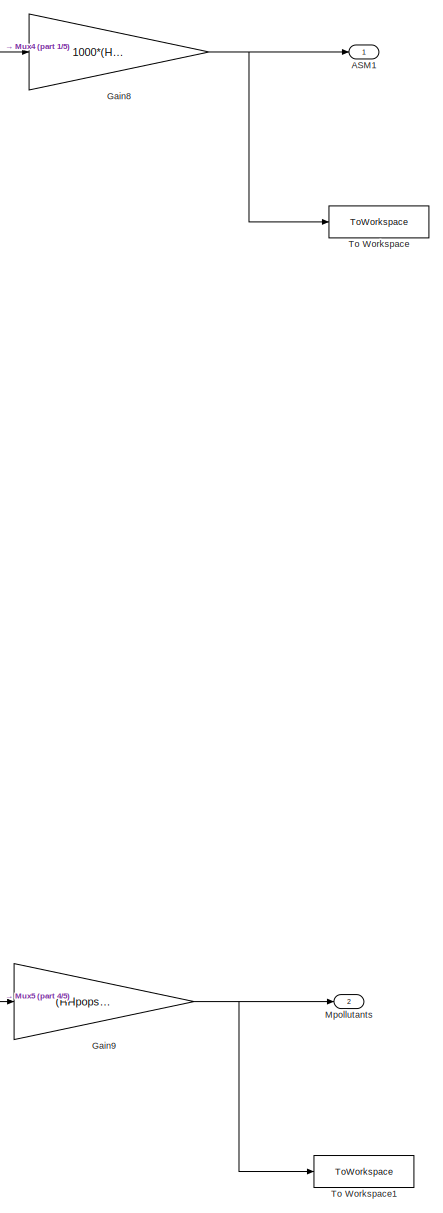
[diagram: HH pollutants load model block  - part 2/5, middle right region]
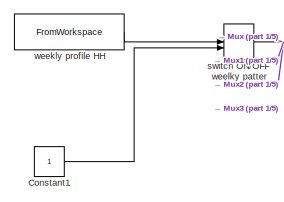
[diagram: HH pollutants load model block  - part 3/5, middle left region]
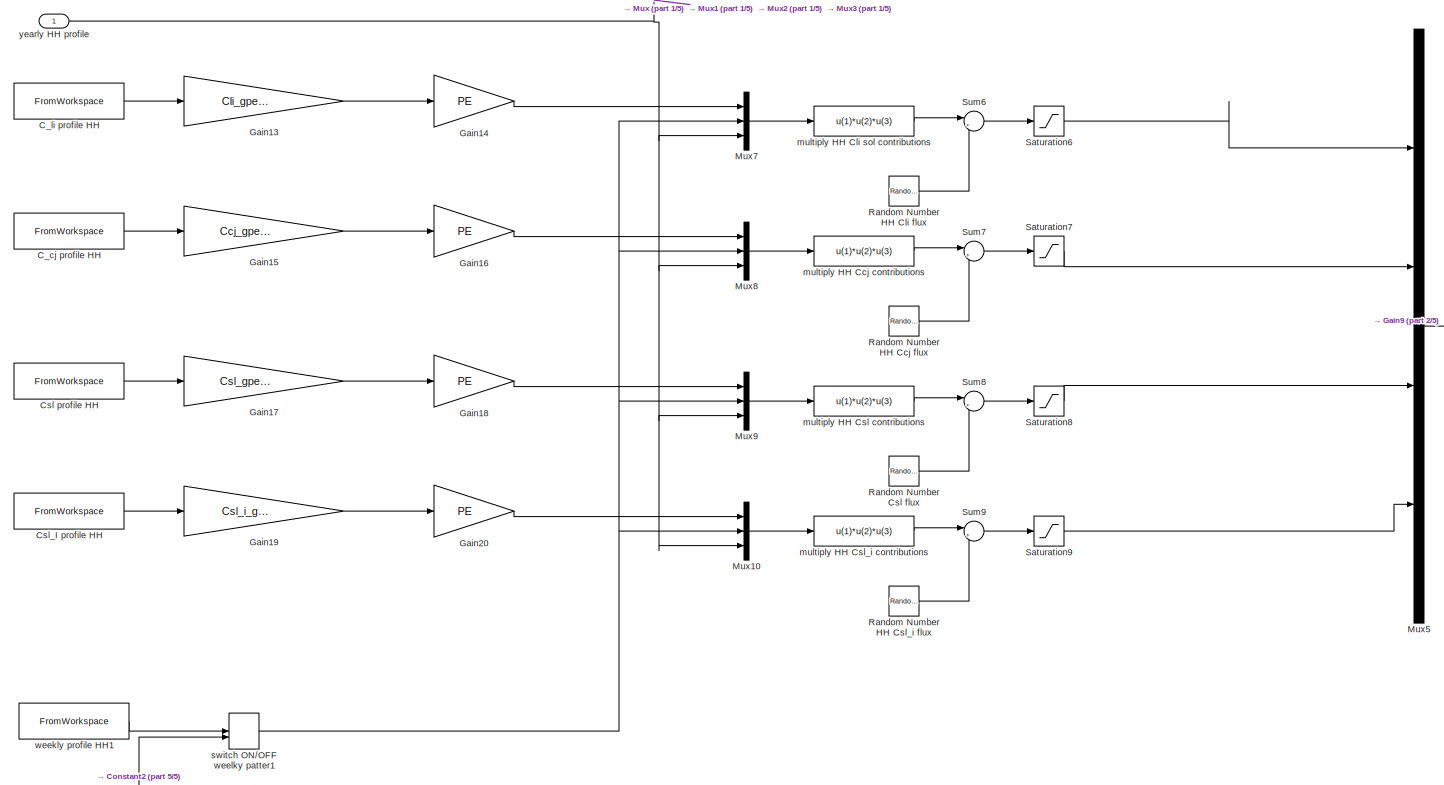
[diagram: HH pollutants load model block  - part 4/5, full width, bottom band]
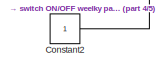
[diagram: HH pollutants load model block  - part 5/5, bottom left region]
BLOCK [SubSystem] HH pollutants load model block 
  FunctionWithSeparateData = off
  MaskHideContents = off
  MinAlgLoopOccurrences = off
  Opaque = off
  Ports = [1, 2]
  PropExecContextOutsideSubsystem = off
  RTWSystemCode = Auto
  RequestExecContextInheritance = off
BLOCK [Outport] HH pollutants load model block /ASM1
  IconDisplay = Port number
BLOCK [FromWorkspace] HH pollutants load model block /CODpart profile HH
  Interpolate = off
  OutputAfterFinalValue = Cyclic repetition
  SampleTime = 1/24
  VariableName = CODpart_day_HS
BLOCK [FromWorkspace] HH pollutants load model block /CODsol profile HH
  Interpolate = off
  OutputAfterFinalValue = Cyclic repetition
  SampleTime = 1/24
  VariableName = CODsol_day_HS
BLOCK [FromWorkspace] HH pollutants load model block /C_cj profile HH
  Interpolate = off
  OutputAfterFinalValue = Cyclic repetition
  SampleTime = 1/24
  VariableName = XXX_day_HS
BLOCK [FromWorkspace] HH pollutants load model block /C_li profile HH
  Interpolate = off
  OutputAfterFinalValue = Cyclic repetition
  SampleTime = 1/24
  VariableName = XXX_day_HS
BLOCK [Constant] HH pollutants load model block /Constant1
BLOCK [Constant] HH pollutants load model block /Constant2
BLOCK [FromWorkspace] HH pollutants load model block /Csl profile HH
  Interpolate = off
  OutputAfterFinalValue = Cyclic repetition
  SampleTime = 1/24
  VariableName = XXX_day_HS
BLOCK [FromWorkspace] HH pollutants load model block /Csl_I profile HH
  Interpolate = off
  OutputAfterFinalValue = Cyclic repetition
  SampleTime = 1/24
  VariableName = XXX_day_HS
BLOCK [Gain] HH pollutants load model block /Gain
  Gain = CODsol_gperPEperd
  OutDataTypeStr = Inherit: Inherit via internal rule
  ParamDataTypeStr = Inherit: Inherit via internal rule
  SaturateOnIntegerOverflow = off
BLOCK [Gain] HH pollutants load model block /Gain1
  Gain = PE
  OutDataTypeStr = Inherit: Inherit via internal rule
  ParamDataTypeStr = Inherit: Inherit via internal rule
  SaturateOnIntegerOverflow = off
BLOCK [Gain] HH pollutants load model block /Gain13
  Gain = Cli_gperPEperd
  OutDataTypeStr = Inherit: Inherit via internal rule
  ParamDataTypeStr = Inherit: Inherit via internal rule
  SaturateOnIntegerOverflow = off
BLOCK [Gain] HH pollutants load model block /Gain14
  Gain = PE
  OutDataTypeStr = Inherit: Inherit via internal rule
  ParamDataTypeStr = Inherit: Inherit via internal rule
  SaturateOnIntegerOverflow = off
BLOCK [Gain] HH pollutants load model block /Gain15
  Gain = Ccj_gperPEperd
  OutDataTypeStr = Inherit: Inherit via internal rule
  ParamDataTypeStr = Inherit: Inherit via internal rule
  SaturateOnIntegerOverflow = off
BLOCK [Gain] HH pollutants load model block /Gain16
  Gain = PE
  OutDataTypeStr = Inherit: Inherit via internal rule
  ParamDataTypeStr = Inherit: Inherit via internal rule
  SaturateOnIntegerOverflow = off
BLOCK [Gain] HH pollutants load model block /Gain17
  Gain = Csl_gperPEperd
  OutDataTypeStr = Inherit: Inherit via internal rule
  ParamDataTypeStr = Inherit: Inherit via internal rule
  SaturateOnIntegerOverflow = off
BLOCK [Gain] HH pollutants load model block /Gain18
  Gain = PE
  OutDataTypeStr = Inherit: Inherit via internal rule
  ParamDataTypeStr = Inherit: Inherit via internal rule
  SaturateOnIntegerOverflow = off
BLOCK [Gain] HH pollutants load model block /Gain19
  Gain = Csl_i_gperPEperd
  OutDataTypeStr = Inherit: Inherit via internal rule
  ParamDataTypeStr = Inherit: Inherit via internal rule
  SaturateOnIntegerOverflow = off
BLOCK [Gain] HH pollutants load model block /Gain2
  Gain = CODpart_gperPEperd
  OutDataTypeStr = Inherit: Inherit via internal rule
  ParamDataTypeStr = Inherit: Inherit via internal rule
  SaturateOnIntegerOverflow = off
BLOCK [Gain] HH pollutants load model block /Gain20
  Gain = PE
  OutDataTypeStr = Inherit: Inherit via internal rule
  ParamDataTypeStr = Inherit: Inherit via internal rule
  SaturateOnIntegerOverflow = off
BLOCK [Gain] HH pollutants load model block /Gain3
  Gain = PE
  OutDataTypeStr = Inherit: Inherit via internal rule
  ParamDataTypeStr = Inherit: Inherit via internal rule
  SaturateOnIntegerOverflow = off
BLOCK [Gain] HH pollutants load model block /Gain4
  Gain = PE
  OutDataTypeStr = Inherit: Inherit via internal rule
  ParamDataTypeStr = Inherit: Inherit via internal rule
  SaturateOnIntegerOverflow = off
BLOCK [Gain] HH pollutants load model block /Gain5
  Gain = PE
  OutDataTypeStr = Inherit: Inherit via internal rule
  ParamDataTypeStr = Inherit: Inherit via internal rule
  SaturateOnIntegerOverflow = off
BLOCK [Gain] HH pollutants load model block /Gain6
  Gain = SNH_gperPEperd
  OutDataTypeStr = Inherit: Inherit via internal rule
  ParamDataTypeStr = Inherit: Inherit via internal rule
  SaturateOnIntegerOverflow = off
BLOCK [Gain] HH pollutants load model block /Gain7
  Gain = TKN_gperPEperd
  OutDataTypeStr = Inherit: Inherit via internal rule
  ParamDataTypeStr = Inherit: Inherit via internal rule
  SaturateOnIntegerOverflow = off
BLOCK [Gain] HH pollutants load model block /Gain8
  Gain = 1000*(HHpopswitch/100)
  OutDataTypeStr = Inherit: Inherit via internal rule
  ParamDataTypeStr = Inherit: Inherit via internal rule
  SaturateOnIntegerOverflow = off
BLOCK [Gain] HH pollutants load model block /Gain9
  Gain = (HHpopswitch/100)
  OutDataTypeStr = Inherit: Inherit via internal rule
  ParamDataTypeStr = Inherit: Inherit via internal rule
  SaturateOnIntegerOverflow = off
BLOCK [Outport] HH pollutants load model block /Mpollutants
  IconDisplay = Port number
  Port = 2
BLOCK [Mux] HH pollutants load model block /Mux
  DisplayOption = bar
  Inputs = 3
  Ports = [3, 1]
BLOCK [Mux] HH pollutants load model block /Mux1
  DisplayOption = bar
  Inputs = 3
  Ports = [3, 1]
BLOCK [Mux] HH pollutants load model block /Mux10
  DisplayOption = bar
  Inputs = 3
  Ports = [3, 1]
BLOCK [Mux] HH pollutants load model block /Mux2
  DisplayOption = bar
  Inputs = 3
  Ports = [3, 1]
BLOCK [Mux] HH pollutants load model block /Mux3
  DisplayOption = bar
  Inputs = 3
  Ports = [3, 1]
BLOCK [Mux] HH pollutants load model block /Mux4
  DisplayOption = bar
  Inputs = 5
  Ports = [5, 1]
BLOCK [Mux] HH pollutants load model block /Mux5
  DisplayOption = bar
  Ports = [4, 1]
BLOCK [Mux] HH pollutants load model block /Mux7
  DisplayOption = bar
  Inputs = 3
  Ports = [3, 1]
BLOCK [Mux] HH pollutants load model block /Mux8
  DisplayOption = bar
  Inputs = 3
  Ports = [3, 1]
BLOCK [Mux] HH pollutants load model block /Mux9
  DisplayOption = bar
  Inputs = 3
  Ports = [3, 1]
BLOCK [Constant] HH pollutants load model block /NOX
  Value = 0
BLOCK [RandomNumber] HH pollutants load model block /Random Number  Csl flux
  SampleTime = Csl_HH_st
  Seed = Csl_HH_ns
  Variance = Csl_HH_nv*HHpolnoiseswitch
BLOCK [RandomNumber] HH pollutants load model block /Random Number  HH Ccj flux
  SampleTime = Ccj_HH_st
  Seed = Ccj_HH_ns
  Variance = Ccj_HH_nv*HHpolnoiseswitch
BLOCK [RandomNumber] HH pollutants load model block /Random Number  HH Cli flux
  SampleTime = Cli_HH_st
  Seed = Cli_HH_ns
  Variance = Cli_HH_nv*HHpolnoiseswitch
BLOCK [RandomNumber] HH pollutants load model block /Random Number  HH Csl_i flux
  SampleTime = Csl_i_HH_st
  Seed = Csl_i_HH_ns
  Variance = Csl_i_HH_nv*HHpolnoiseswitch
BLOCK [RandomNumber] HH pollutants load model block /Random Number  HH SNH flux
  SampleTime = SNH_HH_st
  Seed = SNH_HH_ns
  Variance = SNH_HH_nv*HHpolnoiseswitch
BLOCK [RandomNumber] HH pollutants load model block /Random Number  HH TKN flux
  SampleTime = TKN_HH_st
  Seed = TKN_HH_ns
  Variance = TKN_HH_nv*HHpolnoiseswitch
BLOCK [RandomNumber] HH pollutants load model block /Random Number  HHCODsol flux
  SampleTime = CODsol_HH_st
  Seed = CODsol_HH_ns
  Variance = CODsol_HH_nv*HHpolnoiseswitch
BLOCK [RandomNumber] HH pollutants load model block /RandomNumber  HH CODpart flux
  SampleTime = CODpart_HH_st
  Seed = CODpart_HH_ns
  Variance = CODpart_HH_nv*HHpolnoiseswitch
BLOCK [FromWorkspace] HH pollutants load model block /SNH  profile HH
  Interpolate = off
  OutputAfterFinalValue = Cyclic repetition
  SampleTime = 1/24
  VariableName = SNH_day_HS
BLOCK [Saturate] HH pollutants load model block /Satuation
  InputPortMap = u0
  LowerLimit = CODsol_HH_min
  Ports = [1, 1]
  UpperLimit = CODsol_HH_max
BLOCK [Saturate] HH pollutants load model block /Saturation1
  InputPortMap = u0
  LowerLimit = CODpart_HH_min
  Ports = [1, 1]
  UpperLimit = CODpart_HH_max
BLOCK [Saturate] HH pollutants load model block /Saturation2
  InputPortMap = u0
  LowerLimit = SNH_HH_min
  Ports = [1, 1]
  UpperLimit = SNH_HH_max
BLOCK [Saturate] HH pollutants load model block /Saturation3
  InputPortMap = u0
  LowerLimit = TKN_HH_min
  Ports = [1, 1]
  UpperLimit = TKN_HH_max
BLOCK [Saturate] HH pollutants load model block /Saturation6
  InputPortMap = u0
  LowerLimit = Cli_HH_min
  Ports = [1, 1]
  UpperLimit = Cli_HH_max
BLOCK [Saturate] HH pollutants load model block /Saturation7
  InputPortMap = u0
  LowerLimit = Ccj_HH_min
  Ports = [1, 1]
  UpperLimit = Ccj_HH_max
BLOCK [Saturate] HH pollutants load model block /Saturation8
  InputPortMap = u0
  LowerLimit = Csl_HH_min
  Ports = [1, 1]
  UpperLimit = Csl_HH_max
BLOCK [Saturate] HH pollutants load model block /Saturation9
  InputPortMap = u0
  LowerLimit = Csl_i_HH_min
  Ports = [1, 1]
  UpperLimit = Csl_i_HH_max
BLOCK [Sum] HH pollutants load model block /Sum
  IconShape = round
  InputSameDT = off
  Inputs = |++
  OutDataTypeStr = Inherit: Inherit via internal rule
  Ports = [2, 1]
  SaturateOnIntegerOverflow = off
BLOCK [Sum] HH pollutants load model block /Sum1
  IconShape = round
  InputSameDT = off
  Inputs = |++
  OutDataTypeStr = Inherit: Inherit via internal rule
  Ports = [2, 1]
  SaturateOnIntegerOverflow = off
BLOCK [Sum] HH pollutants load model block /Sum2
  IconShape = round
  InputSameDT = off
  Inputs = |++
  OutDataTypeStr = Inherit: Inherit via internal rule
  Ports = [2, 1]
  SaturateOnIntegerOverflow = off
BLOCK [Sum] HH pollutants load model block /Sum3
  IconShape = round
  InputSameDT = off
  Inputs = |++
  OutDataTypeStr = Inherit: Inherit via internal rule
  Ports = [2, 1]
  SaturateOnIntegerOverflow = off
BLOCK [Sum] HH pollutants load model block /Sum6
  IconShape = round
  InputSameDT = off
  Inputs = |++
  OutDataTypeStr = Inherit: Inherit via internal rule
  Ports = [2, 1]
  SaturateOnIntegerOverflow = off
BLOCK [Sum] HH pollutants load model block /Sum7
  IconShape = round
  InputSameDT = off
  Inputs = |++
  OutDataTypeStr = Inherit: Inherit via internal rule
  Ports = [2, 1]
  SaturateOnIntegerOverflow = off
BLOCK [Sum] HH pollutants load model block /Sum8
  IconShape = round
  InputSameDT = off
  Inputs = |++
  OutDataTypeStr = Inherit: Inherit via internal rule
  Ports = [2, 1]
  SaturateOnIntegerOverflow = off
BLOCK [Sum] HH pollutants load model block /Sum9
  IconShape = round
  InputSameDT = off
  Inputs = |++
  OutDataTypeStr = Inherit: Inherit via internal rule
  Ports = [2, 1]
  SaturateOnIntegerOverflow = off
BLOCK [FromWorkspace] HH pollutants load model block /TKN profile HH
  Interpolate = off
  OutputAfterFinalValue = Cyclic repetition
  SampleTime = 1/24
  VariableName = TKN_day_HS
BLOCK [ToWorkspace] HH pollutants load model block /To Workspace
  MaxDataPoints = inf
  Ports = [1]
  SampleTime = -1
  VariableName = HH_pollutionloads
BLOCK [ToWorkspace] HH pollutants load model block /To Workspace1
  MaxDataPoints = inf
  Ports = [1]
  SampleTime = -1
  VariableName = HH_pollutionloads1
BLOCK [Fcn] HH pollutants load model block /multiply HH CODpart contributions
  Expr = u(1)*u(2)*u(3)
BLOCK [Fcn] HH pollutants load model block /multiply HH CODsol contributions
  Expr = u(1)*u(2)*u(3)
BLOCK [Fcn] HH pollutants load model block /multiply HH Ccj contributions
  Expr = u(1)*u(2)*u(3)
BLOCK [Fcn] HH pollutants load model block /multiply HH Cli sol contributions
  Expr = u(1)*u(2)*u(3)
BLOCK [Fcn] HH pollutants load model block /multiply HH Csl contributions
  Expr = u(1)*u(2)*u(3)
BLOCK [Fcn] HH pollutants load model block /multiply HH Csl_i contributions
  Expr = u(1)*u(2)*u(3)
BLOCK [Fcn] HH pollutants load model block /multiply HH SNH contributions
  Expr = u(1)*u(2)*u(3)
BLOCK [Fcn] HH pollutants load model block /multiply HH TKN contributions
  Expr = u(1)*u(2)*u(3)
BLOCK [ManualSwitch] HH pollutants load model block /switch ON//OFF weelky patter
BLOCK [ManualSwitch] HH pollutants load model block /switch ON//OFF weelky patter1
BLOCK [FromWorkspace] HH pollutants load model block /weekly profile HH
  Interpolate = off
  OutputAfterFinalValue = Cyclic repetition
  SampleTime = 1
  VariableName = week_polHS
BLOCK [FromWorkspace] HH pollutants load model block /weekly profile HH1
  Interpolate = off
  OutputAfterFinalValue = Cyclic repetition
  SampleTime = 1
  VariableName = week_polHS
BLOCK [Inport] HH pollutants load model block /yearly HH profile
  IconDisplay = Port number
BLOCK [SubSystem] Industry flow rate model block
  FunctionWithSeparateData = off
  MaskHideContents = off
  MinAlgLoopOccurrences = off
  Opaque = off
  Ports = [0, 2]
  PropExecContextOutsideSubsystem = off
  RTWSystemCode = Auto
  RequestExecContextInheritance = off
BLOCK [Constant] Industry flow rate model block/Constant
BLOCK [Gain] Industry flow rate model block/Gain
  Gain = QInd_weekday
  OutDataTypeStr = Inherit: Inherit via internal rule
  ParamDataTypeStr = Inherit: Inherit via internal rule
  SaturateOnIntegerOverflow = off
BLOCK [Gain] Industry flow rate model block/Gain1
  Gain = Indpopswitch/100
  OutDataTypeStr = Inherit: Inherit via internal rule
  ParamDataTypeStr = Inherit: Inherit via internal rule
  SaturateOnIntegerOverflow = off
BLOCK [Mux] Industry flow rate model block/Mux
  DisplayOption = bar
  Inputs = 2
  Ports = [2, 1]
BLOCK [Outport] Industry flow rate model block/Out1
  IconDisplay = Port number
BLOCK [Outport] Industry flow rate model block/Out2
  IconDisplay = Port number
  Port = 2
BLOCK [RandomNumber] Industry flow rate model block/Random Number  IndS Flow rate
  SampleTime = Q_Ind_st
  Seed = Q_Ind_ns
  Variance = Q_Ind_nv*Indnoiseswitch
BLOCK [Saturate] Industry flow rate model block/Saturation
  InputPortMap = u0
  LowerLimit = QIndsatmin
  Ports = [1, 1]
  UpperLimit = QIndsatmax
BLOCK [Sum] Industry flow rate model block/Sum
  IconShape = round
  InputSameDT = off
  Inputs = |++
  OutDataTypeStr = Inherit: Inherit via internal rule
  Ports = [2, 1]
  SaturateOnIntegerOverflow = off
BLOCK [ToWorkspace] Industry flow rate model block/To Workspace
  MaxDataPoints = inf
  Ports = [1]
  SampleTime = -1
  VariableName = IndS_flowrate
BLOCK [Fcn] Industry flow rate model block/multiply IndS contributions
  Expr = u(1)*u(2)
BLOCK [ManualSwitch] Industry flow rate model block/switch ON//OFF yearly pattern
BLOCK [FromWorkspace] Industry flow rate model block/week_IndS
  Interpolate = off
  OutputAfterFinalValue = Cyclic repetition
  SampleTime = 1/6
  VariableName = week_IndS
BLOCK [FromWorkspace] Industry flow rate model block/yearly_IndS
  Interpolate = off
  OutputAfterFinalValue = Cyclic repetition
  SampleTime = 1
  VariableName = year_IndS
BLOCK [SubSystem] Industry pollutants load model block 
  FunctionWithSeparateData = off
  MaskHideContents = off
  MinAlgLoopOccurrences = off
  Opaque = off
  Ports = [1, 1]
  PropExecContextOutsideSubsystem = off
  RTWSystemCode = Auto
  RequestExecContextInheritance = off
BLOCK [Outport] Industry pollutants load model block /ASM1
  IconDisplay = Port number
BLOCK [FromWorkspace] Industry pollutants load model block /CODpart profile IndS
  Interpolate = off
  OutputAfterFinalValue = Cyclic repetition
  SampleTime = 1/6
  VariableName = CODpart_week_IndS
BLOCK [FromWorkspace] Industry pollutants load model block /CODsol profile IndS
  Interpolate = off
  OutputAfterFinalValue = Cyclic repetition
  SampleTime = 1/6
  VariableName = CODsol_week_IndS
BLOCK [Gain] Industry pollutants load model block /Gain
  Gain = CODsol_Ind_kgperd
  OutDataTypeStr = Inherit: Inherit via internal rule
  ParamDataTypeStr = Inherit: Inherit via internal rule
  SaturateOnIntegerOverflow = off
BLOCK [Gain] Industry pollutants load model block /Gain1
  Gain = CODpart_Ind_kgperd
  OutDataTypeStr = Inherit: Inherit via internal rule
  ParamDataTypeStr = Inherit: Inherit via internal rule
  SaturateOnIntegerOverflow = off
BLOCK [Gain] Industry pollutants load model block /Gain2
  Gain = SNH_Ind_kgperd
  OutDataTypeStr = Inherit: Inherit via internal rule
  ParamDataTypeStr = Inherit: Inherit via internal rule
  SaturateOnIntegerOverflow = off
BLOCK [Gain] Industry pollutants load model block /Gain3
  Gain = TKN_Ind_kgperd
  OutDataTypeStr = Inherit: Inherit via internal rule
  ParamDataTypeStr = Inherit: Inherit via internal rule
  SaturateOnIntegerOverflow = off
BLOCK [Gain] Industry pollutants load model block /Gain8
  Gain = 1000*(Indpopswitch/100)
  OutDataTypeStr = Inherit: Inherit via internal rule
  ParamDataTypeStr = Inherit: Inherit via internal rule
  SaturateOnIntegerOverflow = off
BLOCK [Mux] Industry pollutants load model block /Mux
  DisplayOption = bar
  Inputs = 2
  Ports = [2, 1]
BLOCK [Mux] Industry pollutants load model block /Mux1
  DisplayOption = bar
  Inputs = 2
  Ports = [2, 1]
BLOCK [Mux] Industry pollutants load model block /Mux2
  DisplayOption = bar
  Inputs = 2
  Ports = [2, 1]
BLOCK [Mux] Industry pollutants load model block /Mux3
  DisplayOption = bar
  Inputs = 2
  Ports = [2, 1]
BLOCK [Mux] Industry pollutants load model block /Mux4
  DisplayOption = bar
  Inputs = 5
  Ports = [5, 1]
BLOCK [Constant] Industry pollutants load model block /NOX
  Value = 0
BLOCK [RandomNumber] Industry pollutants load model block /Random Number  IndS CODpart flux
  SampleTime = CODpart_Ind_st
  Seed = CODpart_Ind_ns
  Variance = CODpart_Ind_nv*Indpolnoiseswitch
BLOCK [RandomNumber] Industry pollutants load model block /Random Number  IndS CODsol flux
  SampleTime = CODsol_Ind_st
  Seed = CODsol_Ind_ns
  Variance = CODsol_Ind_nv*Indpolnoiseswitch
BLOCK [RandomNumber] Industry pollutants load model block /Random Number  IndS SNH flux
  SampleTime = SNH_Ind_st
  Seed = SNH_Ind_ns
  Variance = SNH_Ind_nv*Indpolnoiseswitch
BLOCK [RandomNumber] Industry pollutants load model block /Random Number  IndS TKN flux
  SampleTime = TKN_Ind_st
  Seed = TKN_Ind_ns
  Variance = TKN_Ind_nv*Indpolnoiseswitch
BLOCK [FromWorkspace] Industry pollutants load model block /SNH profile IndS
  Interpolate = off
  OutputAfterFinalValue = Cyclic repetition
  SampleTime = 1/6
  VariableName = SNH_week_IndS
BLOCK [Saturate] Industry pollutants load model block /Saturation
  InputPortMap = u0
  LowerLimit = CODsol_Ind_min
  Ports = [1, 1]
  UpperLimit = CODsol_Ind_max
BLOCK [Saturate] Industry pollutants load model block /Saturation1
  InputPortMap = u0
  LowerLimit = CODpart_Ind_min
  Ports = [1, 1]
  UpperLimit = CODpart_Ind_max
BLOCK [Saturate] Industry pollutants load model block /Saturation2
  InputPortMap = u0
  LowerLimit = SNH_Ind_min
  Ports = [1, 1]
  UpperLimit = SNH_Ind_max
BLOCK [Saturate] Industry pollutants load model block /Saturation3
  InputPortMap = u0
  LowerLimit = TKN_Ind_min
  Ports = [1, 1]
  UpperLimit = TKN_Ind_max
BLOCK [Sum] Industry pollutants load model block /Sum
  IconShape = round
  InputSameDT = off
  Inputs = |++
  OutDataTypeStr = Inherit: Inherit via internal rule
  Ports = [2, 1]
  SaturateOnIntegerOverflow = off
BLOCK [Sum] Industry pollutants load model block /Sum1
  IconShape = round
  InputSameDT = off
  Inputs = |++
  OutDataTypeStr = Inherit: Inherit via internal rule
  Ports = [2, 1]
  SaturateOnIntegerOverflow = off
BLOCK [Sum] Industry pollutants load model block /Sum2
  IconShape = round
  InputSameDT = off
  Inputs = |++
  OutDataTypeStr = Inherit: Inherit via internal rule
  Ports = [2, 1]
  SaturateOnIntegerOverflow = off
BLOCK [Sum] Industry pollutants load model block /Sum3
  IconShape = round
  InputSameDT = off
  Inputs = |++
  OutDataTypeStr = Inherit: Inherit via internal rule
  Ports = [2, 1]
  SaturateOnIntegerOverflow = off
BLOCK [FromWorkspace] Industry pollutants load model block /TKN profile IndS
  Interpolate = off
  OutputAfterFinalValue = Cyclic repetition
  SampleTime = 1/6
  VariableName = TKN_week_IndS
BLOCK [ToWorkspace] Industry pollutants load model block /To Workspace
  MaxDataPoints = inf
  Ports = [1]
  SampleTime = -1
  VariableName = IndS_pollutionloads
BLOCK [Fcn] Industry pollutants load model block /multiply IndS CODpart contributions
  Expr = u(1)*u(2)
BLOCK [Fcn] Industry pollutants load model block /multiply IndS CODsol contributions
  Expr = u(1)*u(2)
BLOCK [Fcn] Industry pollutants load model block /multiply IndS SNH contributions
  Expr = u(1)*u(2)
BLOCK [Fcn] Industry pollutants load model block /multiply IndS TKN contributions
  Expr = u(1)*u(2)
BLOCK [Inport] Industry pollutants load model block /yearly_indS profile
  IconDisplay = Port number
BLOCK [Mux] Mux1
  DisplayOption = bar
  Ports = [4, 1]
BLOCK [Mux] Mux2
  DisplayOption = bar
  Inputs = 3
  Ports = [3, 1]
BLOCK [SubSystem] Rain generation flow rate model block
  FunctionWithSeparateData = off
  MaskHideContents = off
  MinAlgLoopOccurrences = off
  Opaque = off
  Ports = [0, 2]
  PropExecContextOutsideSubsystem = off
  RTWSystemCode = Auto
  RequestExecContextInheritance = off
BLOCK [Gain] Rain generation flow rate model block/Gain1
  Gain = 10
BLOCK [Gain] Rain generation flow rate model block/Gain2
  Gain = Qpermm*rainpopswitch/100
BLOCK [Gain] Rain generation flow rate model block/Gain3
  Gain = 1-aHpercent/100
BLOCK [Gain] Rain generation flow rate model block/Gain4
  Gain = aHpercent/100
BLOCK [Outport] Rain generation flow rate model block/Hard
  IconDisplay = Port number
  Port = 2
BLOCK [Constant] Rain generation flow rate model block/Infiltration
  Value = -LLrain
BLOCK [RandomNumber] Rain generation flow rate model block/Random Number  rain Flow rate
  Mean = rain_nm
  SampleTime = rain_st
  Seed = rain_ns
  Variance = rain_nv
BLOCK [Saturate] Rain generation flow rate model block/Saturation
  InputPortMap = u0
  LowerLimit = rainmin
  Ports = [1, 1]
  UpperLimit = rainmax
BLOCK [Outport] Rain generation flow rate model block/Soil
  IconDisplay = Port number
BLOCK [Sum] Rain generation flow rate model block/Sum3
  IconShape = round
  InputSameDT = off
  Inputs = |++
  OutDataTypeStr = Inherit: Inherit via internal rule
  Ports = [2, 1]
BLOCK [Terminator] Rain generation flow rate model block/Terminator
BLOCK [ToWorkspace] Rain generation flow rate model block/To Workspace1
  MaxDataPoints = inf
  Ports = [1]
  SampleTime = -1
  VariableName = rain_flowrate
BLOCK [ToWorkspace] Rain generation flow rate model block/To Workspace2
  MaxDataPoints = inf
  Ports = [1]
  SampleTime = -1
  VariableName = hard_flowrate
BLOCK [ToWorkspace] Rain generation flow rate model block/To Workspace3
  MaxDataPoints = inf
  Ports = [1]
  SampleTime = -1
  VariableName = soil_flowrate
BLOCK [TransferFcn] Rain generation flow rate model block/Transfer Fcn
  Denominator = [1.5 1]
BLOCK [SubSystem] Seasonal infiltration flow rate model block
  FunctionWithSeparateData = off
  MaskHideContents = off
  MinAlgLoopOccurrences = off
  Opaque = off
  Ports = [0, 1]
  PropExecContextOutsideSubsystem = off
  RTWSystemCode = Auto
  RequestExecContextInheritance = off
BLOCK [Constant] Seasonal infiltration flow rate model block/Constant
  Value = Infcst
BLOCK [Gain] Seasonal infiltration flow rate model block/Gain1
  Gain = SCIpopswitch/100
  OutDataTypeStr = Inherit: Inherit via internal rule
  ParamDataTypeStr = Inherit: Inherit via internal rule
  SaturateOnIntegerOverflow = off
BLOCK [Outport] Seasonal infiltration flow rate model block/Out1
  IconDisplay = Port number
BLOCK [RandomNumber] Seasonal infiltration flow rate model block/Random Number  IndS Flow rate
  SampleTime = Q_SCI_st
  Seed = Q_SCI_ns
  Variance = Q_SCI_nv*SCInoiseswitch
BLOCK [Saturate] Seasonal infiltration flow rate model block/Saturation
  InputPortMap = u0
  LowerLimit = QSCIsatmin
  Ports = [1, 1]
  UpperLimit = QSCIsatmax
BLOCK [Sin] Seasonal infiltration flow rate model block/Sine Wave
  Amplitude = InfAmp
  Bias = InfBias
  Frequency = InfFreq
  Phase = InfPhase
  Ports = [0, 1]
  SampleTime = 0
BLOCK [Sum] Seasonal infiltration flow rate model block/Sum
  IconShape = round
  InputSameDT = off
  Inputs = |++
  OutDataTypeStr = Inherit: Inherit via internal rule
  Ports = [2, 1]
  SaturateOnIntegerOverflow = off
BLOCK [ToWorkspace] Seasonal infiltration flow rate model block/To Workspace1
  MaxDataPoints = inf
  Ports = [1]
  SampleTime = -1
  VariableName = SCI_flowrate
BLOCK [ManualSwitch] Seasonal infiltration flow rate model block/switch ON//OFF infiltration pattern
BLOCK [SubSystem] Soil
  FunctionWithSeparateData = off
  MaskHideContents = off
  MinAlgLoopOccurrences = off
  Opaque = off
  Ports = [2, 1]
  PropExecContextOutsideSubsystem = off
  RTWSystemCode = Auto
  RequestExecContextInheritance = off
BLOCK [Mux] Soil/Mux1
  DisplayOption = bar
  Inputs = 2
  Ports = [2, 1]
BLOCK [Inport] Soil/Q_Seas_in
  IconDisplay = Port number
BLOCK [Outport] Soil/Q_Soil_out
  IconDisplay = Port number
BLOCK [Inport] Soil/Q_rain_in
  IconDisplay = Port number
  Port = 2
BLOCK [S-Function] Soil/S-Function
  EnableBusSupport = off
  FunctionName = unisoilmodel
  Parameters = XINITSOIL, PARS_SOIL
  Ports = [1, 1]
BLOCK [Selector] Soil/Selector
  IndexOptions = Index vector (dialog)
  Indices = [1]
  InputPortWidth = 4
  OutputSizes = 1
  Ports = [1, 1]
BLOCK [Selector] Soil/Selector1
  IndexOptions = Index vector (dialog)
  Indices = [2]
  InputPortWidth = 4
  OutputSizes = 1
  Ports = [1, 1]
BLOCK [Sum] Soil/Sum3
  IconShape = round
  InputSameDT = off
  Inputs = |++
  OutDataTypeStr = Inherit: Inherit via internal rule
  Ports = [2, 1]
BLOCK [ToWorkspace] Soil/To Workspace
  MaxDataPoints = inf
  Ports = [1]
  SampleTime = -1
  VariableName = soil2_flowrate
BLOCK [ToWorkspace] Soil/To Workspace1
  MaxDataPoints = inf
  Ports = [1]
  SampleTime = -1
  VariableName = soil2_flowrate1
BLOCK [ToWorkspace] Soil/To Workspace2
  MaxDataPoints = inf
  Ports = [1]
  SampleTime = -1
  VariableName = soil2_flowrate2
BLOCK [Sum] Sum
  IconShape = round
  InputSameDT = off
  Inputs = |++
  OutDataTypeStr = Inherit: Inherit via internal rule
  Ports = [2, 1]
BLOCK [ToWorkspace] To Workspace
  MaxDataPoints = inf
  Ports = [1]
  SampleTime = -1
  VariableName = simout_ASM1
LINE ASM1_X/ASM1_fractionator:1 -> ASM1_X/Noise application:1
NET ASM1_X/BSM1_fractionator1:1 -> ASM1_X/Noise application1:1, ASM1_X/To Workspace1:1
NET ASM1_X/Mux2:1 -> ASM1_X/To Workspace:1, ASM1_X/sewer:1
LINE ASM1_X/Noise application/Add noise SI/In1:1 -> ASM1_X/Noise application/Add noise SI/Sum:1
LINE ASM1_X/Noise application/Add noise SI/Random Number:1 -> ASM1_X/Noise application/Add noise SI/Sum:2
LINE ASM1_X/Noise application/Add noise SI/Saturation:1 -> ASM1_X/Noise application/Add noise SI/Out1:1
LINE ASM1_X/Noise application/Add noise SI/Sum:1 -> ASM1_X/Noise application/Add noise SI/Saturation:1
LINE ASM1_X/Noise application/Add noise SI:1 -> ASM1_X/Noise application/SI:1
LINE ASM1_X/Noise application/Add noise SND/In1:1 -> ASM1_X/Noise application/Add noise SND/Sum:1
LINE ASM1_X/Noise application/Add noise SND/Random Number:1 -> ASM1_X/Noise application/Add noise SND/Sum:2
LINE ASM1_X/Noise application/Add noise SND/Saturation:1 -> ASM1_X/Noise application/Add noise SND/Out1:1
LINE ASM1_X/Noise application/Add noise SND/Sum:1 -> ASM1_X/Noise application/Add noise SND/Saturation:1
LINE ASM1_X/Noise application/Add noise SND:1 -> ASM1_X/Noise application/SND:1
LINE ASM1_X/Noise application/Add noise SNH/In1:1 -> ASM1_X/Noise application/Add noise SNH/Sum:1
LINE ASM1_X/Noise application/Add noise SNH/Random Number:1 -> ASM1_X/Noise application/Add noise SNH/Sum:2
LINE ASM1_X/Noise application/Add noise SNH/Saturation:1 -> ASM1_X/Noise application/Add noise SNH/Out1:1
LINE ASM1_X/Noise application/Add noise SNH/Sum:1 -> ASM1_X/Noise application/Add noise SNH/Saturation:1
LINE ASM1_X/Noise application/Add noise SNH:1 -> ASM1_X/Noise application/SNH:1
LINE ASM1_X/Noise application/Add noise SS/In1:1 -> ASM1_X/Noise application/Add noise SS/Sum:1
LINE ASM1_X/Noise application/Add noise SS/Random Number:1 -> ASM1_X/Noise application/Add noise SS/Sum:2
LINE ASM1_X/Noise application/Add noise SS/Saturation:1 -> ASM1_X/Noise application/Add noise SS/Out1:1
LINE ASM1_X/Noise application/Add noise SS/Sum:1 -> ASM1_X/Noise application/Add noise SS/Saturation:1
LINE ASM1_X/Noise application/Add noise SS:1 -> ASM1_X/Noise application/SS:1
LINE ASM1_X/Noise application/Add noise XBH/In1:1 -> ASM1_X/Noise application/Add noise XBH/Sum:1
LINE ASM1_X/Noise application/Add noise XBH/Random Number:1 -> ASM1_X/Noise application/Add noise XBH/Sum:2
LINE ASM1_X/Noise application/Add noise XBH/Saturation:1 -> ASM1_X/Noise application/Add noise XBH/Out1:1
LINE ASM1_X/Noise application/Add noise XBH/Sum:1 -> ASM1_X/Noise application/Add noise XBH/Saturation:1
NET ASM1_X/Noise application/Add noise XBH:1 -> ASM1_X/Noise application/Gain20:1, ASM1_X/Noise application/XBH:1
LINE ASM1_X/Noise application/Add noise XI/In1:1 -> ASM1_X/Noise application/Add noise XI/Sum:1
LINE ASM1_X/Noise application/Add noise XI/Random Number:1 -> ASM1_X/Noise application/Add noise XI/Sum:2
LINE ASM1_X/Noise application/Add noise XI/Saturation:1 -> ASM1_X/Noise application/Add noise XI/Out1:1
LINE ASM1_X/Noise application/Add noise XI/Sum:1 -> ASM1_X/Noise application/Add noise XI/Saturation:1
NET ASM1_X/Noise application/Add noise XI:1 -> ASM1_X/Noise application/Gain18:1, ASM1_X/Noise application/XI:1
LINE ASM1_X/Noise application/Add noise XND/In1:1 -> ASM1_X/Noise application/Add noise XND/Sum:1
LINE ASM1_X/Noise application/Add noise XND/Random Number:1 -> ASM1_X/Noise application/Add noise XND/Sum:2
LINE ASM1_X/Noise application/Add noise XND/Saturation:1 -> ASM1_X/Noise application/Add noise XND/Out1:1
LINE ASM1_X/Noise application/Add noise XND/Sum:1 -> ASM1_X/Noise application/Add noise XND/Saturation:1
LINE ASM1_X/Noise application/Add noise XND:1 -> ASM1_X/Noise application/XND:1
LINE ASM1_X/Noise application/Add noise XS/In1:1 -> ASM1_X/Noise application/Add noise XS/Sum:1
LINE ASM1_X/Noise application/Add noise XS/Random Number:1 -> ASM1_X/Noise application/Add noise XS/Sum:2
LINE ASM1_X/Noise application/Add noise XS/Saturation:1 -> ASM1_X/Noise application/Add noise XS/Out1:1
LINE ASM1_X/Noise application/Add noise XS/Sum:1 -> ASM1_X/Noise application/Add noise XS/Saturation:1
NET ASM1_X/Noise application/Add noise XS:1 -> ASM1_X/Noise application/Gain19:1, ASM1_X/Noise application/XS:1
LINE ASM1_X/Noise application/Demux:1 -> ASM1_X/Noise application/Add noise SI:1
LINE ASM1_X/Noise application/Demux:10 -> ASM1_X/Noise application/Add noise SNH:1
LINE ASM1_X/Noise application/Demux:11 -> ASM1_X/Noise application/Add noise SND:1
LINE ASM1_X/Noise application/Demux:12 -> ASM1_X/Noise application/Add noise XND:1
LINE ASM1_X/Noise application/Demux:13 -> ASM1_X/Noise application/SALK:1
LINE ASM1_X/Noise application/Demux:2 -> ASM1_X/Noise application/Add noise SS:1
LINE ASM1_X/Noise application/Demux:3 -> ASM1_X/Noise application/Add noise XI:1
LINE ASM1_X/Noise application/Demux:4 -> ASM1_X/Noise application/Add noise XS:1
LINE ASM1_X/Noise application/Demux:5 -> ASM1_X/Noise application/Add noise XBH:1
NET ASM1_X/Noise application/Demux:6 -> ASM1_X/Noise application/Gain21:1, ASM1_X/Noise application/XBA:1
NET ASM1_X/Noise application/Demux:7 -> ASM1_X/Noise application/Gain22:1, ASM1_X/Noise application/XU:1
LINE ASM1_X/Noise application/Demux:8 -> ASM1_X/Noise application/SO:1
LINE ASM1_X/Noise application/Demux:9 -> ASM1_X/Noise application/SNO:1
LINE ASM1_X/Noise application/Gain18:1 -> ASM1_X/Noise application/TSS7:1
LINE ASM1_X/Noise application/Gain19:1 -> ASM1_X/Noise application/TSS7:2
LINE ASM1_X/Noise application/Gain20:1 -> ASM1_X/Noise application/TSS7:3
LINE ASM1_X/Noise application/Gain21:1 -> ASM1_X/Noise application/TSS7:4
LINE ASM1_X/Noise application/Gain22:1 -> ASM1_X/Noise application/TSS7:5
LINE ASM1_X/Noise application/In1:1 -> ASM1_X/Noise application/Demux:1
LINE ASM1_X/Noise application/TSS7:1 -> ASM1_X/Noise application/TSS:1
LINE ASM1_X/Noise application1/Demux:1 -> ASM1_X/Noise application1/C_li:1
LINE ASM1_X/Noise application1/Demux:2 -> ASM1_X/Noise application1/C_cj:1
LINE ASM1_X/Noise application1/Demux:3 -> ASM1_X/Noise application1/C_sl:1
LINE ASM1_X/Noise application1/Demux:4 -> ASM1_X/Noise application1/C_sl_i:1
LINE ASM1_X/Noise application1/In1:1 -> ASM1_X/Noise application1/Demux:1
LINE ASM1_X/Noise application1:1 -> ASM1_X/Mux2:17
LINE ASM1_X/Noise application1:2 -> ASM1_X/Mux2:18
LINE ASM1_X/Noise application1:3 -> ASM1_X/Mux2:19
LINE ASM1_X/Noise application1:4 -> ASM1_X/Mux2:20
LINE ASM1_X/Noise application:1 -> ASM1_X/Mux2:1
LINE ASM1_X/Noise application:10 -> ASM1_X/Mux2:10
LINE ASM1_X/Noise application:11 -> ASM1_X/Mux2:11
LINE ASM1_X/Noise application:12 -> ASM1_X/Mux2:12
LINE ASM1_X/Noise application:13 -> ASM1_X/Mux2:13
LINE ASM1_X/Noise application:14 -> ASM1_X/Mux2:14
LINE ASM1_X/Noise application:2 -> ASM1_X/Mux2:2
LINE ASM1_X/Noise application:3 -> ASM1_X/Mux2:3
LINE ASM1_X/Noise application:4 -> ASM1_X/Mux2:4
LINE ASM1_X/Noise application:5 -> ASM1_X/Mux2:5
LINE ASM1_X/Noise application:6 -> ASM1_X/Mux2:6
LINE ASM1_X/Noise application:7 -> ASM1_X/Mux2:7
LINE ASM1_X/Noise application:8 -> ASM1_X/Mux2:8
LINE ASM1_X/Noise application:9 -> ASM1_X/Mux2:9
LINE ASM1_X/TSS10:1 -> ASM1_X/Mux2:16
LINE ASM1_X/daily variation module:1 -> ASM1_X/TSS10:2
LINE ASM1_X/dummy state :1 -> ASM1_X/Mux2:21
LINE ASM1_X/first flush effect1/Demux:1 -> ASM1_X/first flush effect1/Mux2:1
LINE ASM1_X/first flush effect1/Demux:10 -> ASM1_X/first flush effect1/Mux2:10
LINE ASM1_X/first flush effect1/Demux:11 -> ASM1_X/first flush effect1/Mux2:11
LINE ASM1_X/first flush effect1/Demux:12 -> ASM1_X/first flush effect1/first flush effect:6
LINE ASM1_X/first flush effect1/Demux:13 -> ASM1_X/first flush effect1/Mux2:13
LINE ASM1_X/first flush effect1/Demux:14 -> ASM1_X/first flush effect1/Terminator:1
NET ASM1_X/first flush effect1/Demux:15 -> ASM1_X/first flush effect1/Mux2:15, ASM1_X/first flush effect1/first flush effect:7
LINE ASM1_X/first flush effect1/Demux:16 -> ASM1_X/first flush effect1/Mux2:16
LINE ASM1_X/first flush effect1/Demux:17 -> ASM1_X/first flush effect1/Mux2:17
LINE ASM1_X/first flush effect1/Demux:18 -> ASM1_X/first flush effect1/Mux2:18
LINE ASM1_X/first flush effect1/Demux:19 -> ASM1_X/first flush effect1/Mux2:19
LINE ASM1_X/first flush effect1/Demux:2 -> ASM1_X/first flush effect1/Mux2:2
LINE ASM1_X/first flush effect1/Demux:20 -> ASM1_X/first flush effect1/first flush effect:8
LINE ASM1_X/first flush effect1/Demux:21 -> ASM1_X/first flush effect1/first flush effect:9
LINE ASM1_X/first flush effect1/Demux:3 -> ASM1_X/first flush effect1/first flush effect:1
LINE ASM1_X/first flush effect1/Demux:4 -> ASM1_X/first flush effect1/first flush effect:2
LINE ASM1_X/first flush effect1/Demux:5 -> ASM1_X/first flush effect1/first flush effect:3
LINE ASM1_X/first flush effect1/Demux:6 -> ASM1_X/first flush effect1/first flush effect:4
LINE ASM1_X/first flush effect1/Demux:7 -> ASM1_X/first flush effect1/first flush effect:5
LINE ASM1_X/first flush effect1/Demux:8 -> ASM1_X/first flush effect1/Mux2:8
LINE ASM1_X/first flush effect1/Demux:9 -> ASM1_X/first flush effect1/Mux2:9
LINE ASM1_X/first flush effect1/Mux2:1 -> ASM1_X/first flush effect1/_out:1
NET ASM1_X/first flush effect1/first flush effect/DX1_in:1 -> ASM1_X/first flush effect1/first flush effect/Gain23:1, ASM1_X/first flush effect1/first flush effect/Gain24:1
NET ASM1_X/first flush effect1/first flush effect/DX2_in:1 -> ASM1_X/first flush effect1/first flush effect/Gain25:1, ASM1_X/first flush effect1/first flush effect/Gain26:1
LINE ASM1_X/first flush effect1/first flush effect/Flush XD1:1 -> ASM1_X/first flush effect1/first flush effect/TSS8:1
LINE ASM1_X/first flush effect1/first flush effect/Flush XD2:1 -> ASM1_X/first flush effect1/first flush effect/TSS9:1
LINE ASM1_X/first flush effect1/first flush effect/Flush X_BA:1 -> ASM1_X/first flush effect1/first flush effect/TSS4:1
LINE ASM1_X/first flush effect1/first flush effect/Flush X_BH:1 -> ASM1_X/first flush effect1/first flush effect/TSS3:1
LINE ASM1_X/first flush effect1/first flush effect/Flush X_I:1 -> ASM1_X/first flush effect1/first flush effect/TSS1:1
LINE ASM1_X/first flush effect1/first flush effect/Flush X_ND:1 -> ASM1_X/first flush effect1/first flush effect/TSS6:1
LINE ASM1_X/first flush effect1/first flush effect/Flush X_S:1 -> ASM1_X/first flush effect1/first flush effect/TSS2:1
LINE ASM1_X/first flush effect1/first flush effect/Flush X_U:1 -> ASM1_X/first flush effect1/first flush effect/TSS5:1
LINE ASM1_X/first flush effect1/first flush effect/Gain10:1 -> ASM1_X/first flush effect1/first flush effect/Mux:2
LINE ASM1_X/first flush effect1/first flush effect/Gain11:1 -> ASM1_X/first flush effect1/first flush effect/Mux1:6
LINE ASM1_X/first flush effect1/first flush effect/Gain12:1 -> ASM1_X/first flush effect1/first flush effect/TSS1:2
LINE ASM1_X/first flush effect1/first flush effect/Gain13:1 -> ASM1_X/first flush effect1/first flush effect/TSS6:2
LINE ASM1_X/first flush effect1/first flush effect/Gain14:1 -> ASM1_X/first flush effect1/first flush effect/TSS2:2
LINE ASM1_X/first flush effect1/first flush effect/Gain15:1 -> ASM1_X/first flush effect1/first flush effect/TSS3:2
LINE ASM1_X/first flush effect1/first flush effect/Gain16:1 -> ASM1_X/first flush effect1/first flush effect/TSS4:2
LINE ASM1_X/first flush effect1/first flush effect/Gain17:1 -> ASM1_X/first flush effect1/first flush effect/TSS5:2
LINE ASM1_X/first flush effect1/first flush effect/Gain18:1 -> ASM1_X/first flush effect1/first flush effect/TSS7:1
LINE ASM1_X/first flush effect1/first flush effect/Gain19:1 -> ASM1_X/first flush effect1/first flush effect/TSS7:2
LINE ASM1_X/first flush effect1/first flush effect/Gain1:1 -> ASM1_X/first flush effect1/first flush effect/TSS:1
LINE ASM1_X/first flush effect1/first flush effect/Gain20:1 -> ASM1_X/first flush effect1/first flush effect/TSS7:3
LINE ASM1_X/first flush effect1/first flush effect/Gain21:1 -> ASM1_X/first flush effect1/first flush effect/TSS7:4
LINE ASM1_X/first flush effect1/first flush effect/Gain22:1 -> ASM1_X/first flush effect1/first flush effect/TSS7:5
LINE ASM1_X/first flush effect1/first flush effect/Gain23:1 -> ASM1_X/first flush effect1/first flush effect/Mux1:7
LINE ASM1_X/first flush effect1/first flush effect/Gain24:1 -> ASM1_X/first flush effect1/first flush effect/TSS8:2
LINE ASM1_X/first flush effect1/first flush effect/Gain25:1 -> ASM1_X/first flush effect1/first flush effect/Mux1:8
LINE ASM1_X/first flush effect1/first flush effect/Gain26:1 -> ASM1_X/first flush effect1/first flush effect/TSS9:2
NET ASM1_X/first flush effect1/first flush effect/Gain2:1 -> ASM1_X/first flush effect1/first flush effect/Gain3:1, ASM1_X/first flush effect1/first flush effect/Mux1:2
LINE ASM1_X/first flush effect1/first flush effect/Gain3:1 -> ASM1_X/first flush effect1/first flush effect/TSS:2
NET ASM1_X/first flush effect1/first flush effect/Gain4:1 -> ASM1_X/first flush effect1/first flush effect/Gain5:1, ASM1_X/first flush effect1/first flush effect/Mux1:3
LINE ASM1_X/first flush effect1/first flush effect/Gain5:1 -> ASM1_X/first flush effect1/first flush effect/TSS:3
NET ASM1_X/first flush effect1/first flush effect/Gain6:1 -> ASM1_X/first flush effect1/first flush effect/Gain7:1, ASM1_X/first flush effect1/first flush effect/Mux1:4
LINE ASM1_X/first flush effect1/first flush effect/Gain7:1 -> ASM1_X/first flush effect1/first flush effect/TSS:4
NET ASM1_X/first flush effect1/first flush effect/Gain8:1 -> ASM1_X/first flush effect1/first flush effect/Gain9:1, ASM1_X/first flush effect1/first flush effect/Mux1:5
LINE ASM1_X/first flush effect1/first flush effect/Gain9:1 -> ASM1_X/first flush effect1/first flush effect/TSS:5
NET ASM1_X/first flush effect1/first flush effect/Gain:1 -> ASM1_X/first flush effect1/first flush effect/Gain1:1, ASM1_X/first flush effect1/first flush effect/Mux1:1
LINE ASM1_X/first flush effect1/first flush effect/Mux1:1 -> ASM1_X/first flush effect1/first flush effect/Mux:3
LINE ASM1_X/first flush effect1/first flush effect/Mux2:1 -> ASM1_X/first flush effect1/first flush effect/To Workspace1:1
LINE ASM1_X/first flush effect1/first flush effect/Mux:1 -> ASM1_X/first flush effect1/first flush effect/first flush effect:1
LINE ASM1_X/first flush effect1/first flush effect/Q:1 -> ASM1_X/first flush effect1/first flush effect/Mux:1
NET ASM1_X/first flush effect1/first flush effect/TSS1:1 -> ASM1_X/first flush effect1/first flush effect/Gain18:1, ASM1_X/first flush effect1/first flush effect/Mux2:1, ASM1_X/first flush effect1/first flush effect/XI_out:1
NET ASM1_X/first flush effect1/first flush effect/TSS2:1 -> ASM1_X/first flush effect1/first flush effect/Gain19:1, ASM1_X/first flush effect1/first flush effect/Mux2:2, ASM1_X/first flush effect1/first flush effect/XS_out:1
NET ASM1_X/first flush effect1/first flush effect/TSS3:1 -> ASM1_X/first flush effect1/first flush effect/Gain20:1, ASM1_X/first flush effect1/first flush effect/Mux2:3, ASM1_X/first flush effect1/first flush effect/XBH_out:1
NET ASM1_X/first flush effect1/first flush effect/TSS4:1 -> ASM1_X/first flush effect1/first flush effect/Gain21:1, ASM1_X/first flush effect1/first flush effect/Mux2:4, ASM1_X/first flush effect1/first flush effect/XBA_out:1
NET ASM1_X/first flush effect1/first flush effect/TSS5:1 -> ASM1_X/first flush effect1/first flush effect/Gain22:1, ASM1_X/first flush effect1/first flush effect/Mux2:5, ASM1_X/first flush effect1/first flush effect/XU_out:1
NET ASM1_X/first flush effect1/first flush effect/TSS6:1 -> ASM1_X/first flush effect1/first flush effect/Mux2:6, ASM1_X/first flush effect1/first flush effect/XND_out:1
NET ASM1_X/first flush effect1/first flush effect/TSS7:1 -> ASM1_X/first flush effect1/first flush effect/Mux2:7, ASM1_X/first flush effect1/first flush effect/XTSS_out:1
NET ASM1_X/first flush effect1/first flush effect/TSS8:1 -> ASM1_X/first flush effect1/first flush effect/DX1_out:1, ASM1_X/first flush effect1/first flush effect/Mux2:8
NET ASM1_X/first flush effect1/first flush effect/TSS9:1 -> ASM1_X/first flush effect1/first flush effect/DX2_out:1, ASM1_X/first flush effect1/first flush effect/Mux2:9
LINE ASM1_X/first flush effect1/first flush effect/TSS:1 -> ASM1_X/first flush effect1/first flush effect/Gain10:1
NET ASM1_X/first flush effect1/first flush effect/XBA_in:1 -> ASM1_X/first flush effect1/first flush effect/Gain16:1, ASM1_X/first flush effect1/first flush effect/Gain6:1
NET ASM1_X/first flush effect1/first flush effect/XBH_in:1 -> ASM1_X/first flush effect1/first flush effect/Gain15:1, ASM1_X/first flush effect1/first flush effect/Gain4:1
NET ASM1_X/first flush effect1/first flush effect/XI_in:1 -> ASM1_X/first flush effect1/first flush effect/Gain12:1, ASM1_X/first flush effect1/first flush effect/Gain:1
NET ASM1_X/first flush effect1/first flush effect/XND_in:1 -> ASM1_X/first flush effect1/first flush effect/Gain11:1, ASM1_X/first flush effect1/first flush effect/Gain13:1
NET ASM1_X/first flush effect1/first flush effect/XS_in:1 -> ASM1_X/first flush effect1/first flush effect/Gain14:1, ASM1_X/first flush effect1/first flush effect/Gain2:1
NET ASM1_X/first flush effect1/first flush effect/XU_in:1 -> ASM1_X/first flush effect1/first flush effect/Gain17:1, ASM1_X/first flush effect1/first flush effect/Gain8:1
NET ASM1_X/first flush effect1/first flush effect/first flush effect:1 -> ASM1_X/first flush effect1/first flush effect/Flush XD1:1, ASM1_X/first flush effect1/first flush effect/Flush XD2:1, ASM1_X/first flush effect1/first flush effect/Flush X_BA:1, ASM1_X/first flush effect1/first flush effect/Flush X_BH:1, ASM1_X/first flush effect1/first flush effect/Flush X_I:1, ASM1_X/first flush effect1/first flush effect/Flush X_ND:1, ASM1_X/first flush effect1/first flush effect/Flush X_S:1, ASM1_X/first flush effect1/first flush effect/Flush X_U:1, ASM1_X/first flush effect1/first flush effect/To Workspace2:1
LINE ASM1_X/first flush effect1/first flush effect:1 -> ASM1_X/first flush effect1/Mux2:3
LINE ASM1_X/first flush effect1/first flush effect:2 -> ASM1_X/first flush effect1/Mux2:4
LINE ASM1_X/first flush effect1/first flush effect:3 -> ASM1_X/first flush effect1/Mux2:5
LINE ASM1_X/first flush effect1/first flush effect:4 -> ASM1_X/first flush effect1/Mux2:6
LINE ASM1_X/first flush effect1/first flush effect:5 -> ASM1_X/first flush effect1/Mux2:7
LINE ASM1_X/first flush effect1/first flush effect:6 -> ASM1_X/first flush effect1/Mux2:12
LINE ASM1_X/first flush effect1/first flush effect:7 -> ASM1_X/first flush effect1/Mux2:14
LINE ASM1_X/first flush effect1/first flush effect:8 -> ASM1_X/first flush effect1/Mux2:20
LINE ASM1_X/first flush effect1/first flush effect:9 -> ASM1_X/first flush effect1/Mux2:21
LINE ASM1_X/first flush effect1/yearly_indS profile:1 -> ASM1_X/first flush effect1/Demux:1
LINE ASM1_X/first flush effect1:1 -> ASM1_X/_out:1
LINE ASM1_X/influent flow:1 -> ASM1_X/Mux2:15
LINE ASM1_X/seasonal variation module:1 -> ASM1_X/TSS10:1
LINE ASM1_X/sewer/Demux1:1 -> ASM1_X/sewer/Mux10:1
LINE ASM1_X/sewer/Demux1:2 -> ASM1_X/sewer/Gain:1
LINE ASM1_X/sewer/Demux1:3 -> ASM1_X/sewer/Mux10:3
LINE ASM1_X/sewer/Gain:1 -> ASM1_X/sewer/Mux10:2
LINE ASM1_X/sewer/In1:1 -> ASM1_X/sewer/Demux1:1
NET ASM1_X/sewer/Mux10:1 -> ASM1_X/sewer/Mux1:2, ASM1_X/sewer/Mux2:2, ASM1_X/sewer/Mux3:2, ASM1_X/sewer/Mux4:2, ASM1_X/sewer/Mux5:2, ASM1_X/sewer/Mux6:2, ASM1_X/sewer/Mux7:2, ASM1_X/sewer/To Workspace2:1, ASM1_X/sewer/sewer1:1
LINE ASM1_X/sewer/Mux1:1 -> ASM1_X/sewer/S-Function2:1
LINE ASM1_X/sewer/Mux2:1 -> ASM1_X/sewer/S-Function1:1
LINE ASM1_X/sewer/Mux3:1 -> ASM1_X/sewer/S-Function:1
LINE ASM1_X/sewer/Mux4:1 -> ASM1_X/sewer/S-Function3:1
LINE ASM1_X/sewer/Mux5:1 -> ASM1_X/sewer/S-Function4:1
LINE ASM1_X/sewer/Mux6:1 -> ASM1_X/sewer/S-Function5:1
LINE ASM1_X/sewer/Mux7:1 -> ASM1_X/sewer/S-Function6:1
LINE ASM1_X/sewer/S-Function1:1 -> ASM1_X/sewer/sewer4:1
LINE ASM1_X/sewer/S-Function2:1 -> ASM1_X/sewer/sewer3:1
LINE ASM1_X/sewer/S-Function3:1 -> ASM1_X/sewer/sewer5:1
LINE ASM1_X/sewer/S-Function4:1 -> ASM1_X/sewer/sewer6:1
LINE ASM1_X/sewer/S-Function5:1 -> ASM1_X/sewer/sewer7:1
LINE ASM1_X/sewer/S-Function6:1 -> ASM1_X/sewer/sewer8:1
LINE ASM1_X/sewer/S-Function:1 -> ASM1_X/sewer/sewer2:1
LINE ASM1_X/sewer/Switch1:1 -> ASM1_X/sewer/Mux6:1
LINE ASM1_X/sewer/Switch2:1 -> ASM1_X/sewer/Mux5:1
LINE ASM1_X/sewer/Switch3:1 -> ASM1_X/sewer/Mux4:1
LINE ASM1_X/sewer/Switch4:1 -> ASM1_X/sewer/Mux2:1
LINE ASM1_X/sewer/Switch5:1 -> ASM1_X/sewer/Mux1:1
LINE ASM1_X/sewer/Switch6:1 -> ASM1_X/sewer/Mux3:1
LINE ASM1_X/sewer/Switch7:1 -> ASM1_X/sewer/Mux7:1
LINE ASM1_X/sewer/sewer1/Constant:1 -> ASM1_X/sewer/sewer1/Mux1:2
LINE ASM1_X/sewer/sewer1/In1:1 -> ASM1_X/sewer/sewer1/Mux1:1
NET ASM1_X/sewer/sewer1/Mux1:1 -> ASM1_X/sewer/sewer1/S-Function:1, ASM1_X/sewer/sewer1/To Workspace3:1
LINE ASM1_X/sewer/sewer1/S-Function1:1 -> ASM1_X/sewer/sewer1/S-Function2:1
LINE ASM1_X/sewer/sewer1/S-Function2:1 -> ASM1_X/sewer/sewer1/Selector9:1
NET ASM1_X/sewer/sewer1/S-Function:1 -> ASM1_X/sewer/sewer1/S-Function1:1, ASM1_X/sewer/sewer1/To Workspace1:1
NET ASM1_X/sewer/sewer1/Selector9:1 -> ASM1_X/sewer/sewer1/Out1:1, ASM1_X/sewer/sewer1/To Workspace2:1
NET ASM1_X/sewer/sewer1:1 -> ASM1_X/sewer/Switch6:1, ASM1_X/sewer/To Workspace9:1
LINE ASM1_X/sewer/sewer2/Constant:1 -> ASM1_X/sewer/sewer2/Mux1:2
LINE ASM1_X/sewer/sewer2/In1:1 -> ASM1_X/sewer/sewer2/Mux1:1
LINE ASM1_X/sewer/sewer2/Mux1:1 -> ASM1_X/sewer/sewer2/S-Function:1
LINE ASM1_X/sewer/sewer2/S-Function1:1 -> ASM1_X/sewer/sewer2/S-Function2:1
LINE ASM1_X/sewer/sewer2/S-Function2:1 -> ASM1_X/sewer/sewer2/Selector9:1
LINE ASM1_X/sewer/sewer2/S-Function:1 -> ASM1_X/sewer/sewer2/S-Function1:1
LINE ASM1_X/sewer/sewer2/Selector9:1 -> ASM1_X/sewer/sewer2/Out1:1
NET ASM1_X/sewer/sewer2:1 -> ASM1_X/sewer/Switch5:1, ASM1_X/sewer/To Workspace8:1
LINE ASM1_X/sewer/sewer3/Constant:1 -> ASM1_X/sewer/sewer3/Mux1:2
LINE ASM1_X/sewer/sewer3/In1:1 -> ASM1_X/sewer/sewer3/Mux1:1
LINE ASM1_X/sewer/sewer3/Mux1:1 -> ASM1_X/sewer/sewer3/S-Function:1
LINE ASM1_X/sewer/sewer3/S-Function1:1 -> ASM1_X/sewer/sewer3/S-Function2:1
LINE ASM1_X/sewer/sewer3/S-Function2:1 -> ASM1_X/sewer/sewer3/Selector9:1
LINE ASM1_X/sewer/sewer3/S-Function:1 -> ASM1_X/sewer/sewer3/S-Function1:1
LINE ASM1_X/sewer/sewer3/Selector9:1 -> ASM1_X/sewer/sewer3/Out1:1
NET ASM1_X/sewer/sewer3:1 -> ASM1_X/sewer/Switch4:1, ASM1_X/sewer/To Workspace7:1
LINE ASM1_X/sewer/sewer4/Constant:1 -> ASM1_X/sewer/sewer4/Mux1:2
LINE ASM1_X/sewer/sewer4/In1:1 -> ASM1_X/sewer/sewer4/Mux1:1
LINE ASM1_X/sewer/sewer4/Mux1:1 -> ASM1_X/sewer/sewer4/S-Function:1
LINE ASM1_X/sewer/sewer4/S-Function1:1 -> ASM1_X/sewer/sewer4/S-Function2:1
LINE ASM1_X/sewer/sewer4/S-Function2:1 -> ASM1_X/sewer/sewer4/Selector9:1
LINE ASM1_X/sewer/sewer4/S-Function:1 -> ASM1_X/sewer/sewer4/S-Function1:1
LINE ASM1_X/sewer/sewer4/Selector9:1 -> ASM1_X/sewer/sewer4/Out1:1
NET ASM1_X/sewer/sewer4:1 -> ASM1_X/sewer/Switch3:1, ASM1_X/sewer/To Workspace6:1
LINE ASM1_X/sewer/sewer5/Constant:1 -> ASM1_X/sewer/sewer5/Mux1:2
LINE ASM1_X/sewer/sewer5/In1:1 -> ASM1_X/sewer/sewer5/Mux1:1
LINE ASM1_X/sewer/sewer5/Mux1:1 -> ASM1_X/sewer/sewer5/S-Function:1
LINE ASM1_X/sewer/sewer5/S-Function1:1 -> ASM1_X/sewer/sewer5/S-Function2:1
LINE ASM1_X/sewer/sewer5/S-Function2:1 -> ASM1_X/sewer/sewer5/Selector9:1
LINE ASM1_X/sewer/sewer5/S-Function:1 -> ASM1_X/sewer/sewer5/S-Function1:1
LINE ASM1_X/sewer/sewer5/Selector9:1 -> ASM1_X/sewer/sewer5/Out1:1
NET ASM1_X/sewer/sewer5:1 -> ASM1_X/sewer/Switch2:1, ASM1_X/sewer/To Workspace5:1
LINE ASM1_X/sewer/sewer6/Constant:1 -> ASM1_X/sewer/sewer6/Mux1:2
LINE ASM1_X/sewer/sewer6/In1:1 -> ASM1_X/sewer/sewer6/Mux1:1
LINE ASM1_X/sewer/sewer6/Mux1:1 -> ASM1_X/sewer/sewer6/S-Function:1
LINE ASM1_X/sewer/sewer6/S-Function1:1 -> ASM1_X/sewer/sewer6/S-Function2:1
LINE ASM1_X/sewer/sewer6/S-Function2:1 -> ASM1_X/sewer/sewer6/Selector9:1
LINE ASM1_X/sewer/sewer6/S-Function:1 -> ASM1_X/sewer/sewer6/S-Function1:1
LINE ASM1_X/sewer/sewer6/Selector9:1 -> ASM1_X/sewer/sewer6/Out1:1
NET ASM1_X/sewer/sewer6:1 -> ASM1_X/sewer/Switch1:1, ASM1_X/sewer/To Workspace4:1
LINE ASM1_X/sewer/sewer7/Constant:1 -> ASM1_X/sewer/sewer7/Mux1:2
LINE ASM1_X/sewer/sewer7/In1:1 -> ASM1_X/sewer/sewer7/Mux1:1
LINE ASM1_X/sewer/sewer7/Mux1:1 -> ASM1_X/sewer/sewer7/S-Function:1
LINE ASM1_X/sewer/sewer7/S-Function1:1 -> ASM1_X/sewer/sewer7/S-Function2:1
LINE ASM1_X/sewer/sewer7/S-Function2:1 -> ASM1_X/sewer/sewer7/Selector9:1
LINE ASM1_X/sewer/sewer7/S-Function:1 -> ASM1_X/sewer/sewer7/S-Function1:1
LINE ASM1_X/sewer/sewer7/Selector9:1 -> ASM1_X/sewer/sewer7/Out1:1
NET ASM1_X/sewer/sewer7:1 -> ASM1_X/sewer/Switch7:1, ASM1_X/sewer/To Workspace3:1
LINE ASM1_X/sewer/sewer8/Constant:1 -> ASM1_X/sewer/sewer8/Mux1:2
LINE ASM1_X/sewer/sewer8/In1:1 -> ASM1_X/sewer/sewer8/Mux1:1
LINE ASM1_X/sewer/sewer8/Mux1:1 -> ASM1_X/sewer/sewer8/S-Function:1
LINE ASM1_X/sewer/sewer8/S-Function1:1 -> ASM1_X/sewer/sewer8/S-Function2:1
LINE ASM1_X/sewer/sewer8/S-Function2:1 -> ASM1_X/sewer/sewer8/Selector9:1
LINE ASM1_X/sewer/sewer8/S-Function:1 -> ASM1_X/sewer/sewer8/S-Function1:1
LINE ASM1_X/sewer/sewer8/Selector9:1 -> ASM1_X/sewer/sewer8/Out1:1
NET ASM1_X/sewer/sewer8:1 -> ASM1_X/sewer/To Workspace1:1, ASM1_X/sewer/output sewer:1
NET ASM1_X/sewer/subarea1:1 -> ASM1_X/sewer/Switch1:3, ASM1_X/sewer/Switch2:3, ASM1_X/sewer/Switch3:3, ASM1_X/sewer/Switch4:3, ASM1_X/sewer/Switch5:3, ASM1_X/sewer/Switch6:3, ASM1_X/sewer/Switch7:3
NET ASM1_X/sewer/subarea:1 -> ASM1_X/sewer/Switch1:2, ASM1_X/sewer/Switch2:2, ASM1_X/sewer/Switch3:2, ASM1_X/sewer/Switch4:2, ASM1_X/sewer/Switch5:2, ASM1_X/sewer/Switch6:2, ASM1_X/sewer/Switch7:2
NET ASM1_X/sewer:1 -> ASM1_X/To Workspace3:1, ASM1_X/first flush effect1:1
LINE ASM1_X/yearly_indS profile1:1 -> ASM1_X/BSM1_fractionator1:1
NET ASM1_X/yearly_indS profile:1 -> ASM1_X/ASM1_fractionator:1, ASM1_X/influent flow:1
LINE ASM1_X:1 -> To Workspace:1
NET Add:1 -> Mux1:4, Mux2:3
NET HH flow rate model block/Constant:1 -> HH flow rate model block/switch ON//OFF weekly pattern:2, HH flow rate model block/switch ON//OFF yearly pattern:2
NET HH flow rate model block/Gain1:1 -> HH flow rate model block/Out1:1, HH flow rate model block/To Workspace:1
LINE HH flow rate model block/Gain:1 -> HH flow rate model block/Sum:1
LINE HH flow rate model block/Mux:1 -> HH flow rate model block/multiply HH contributions:1
LINE HH flow rate model block/Random Number  HH Flow rate:1 -> HH flow rate model block/Sum:2
LINE HH flow rate model block/Saturation:1 -> HH flow rate model block/Gain1:1
LINE HH flow rate model block/Sum:1 -> HH flow rate model block/Saturation:1
LINE HH flow rate model block/day_HH:1 -> HH flow rate model block/Mux:1
LINE HH flow rate model block/multiply HH contributions:1 -> HH flow rate model block/Gain:1
LINE HH flow rate model block/switch ON//OFF weekly pattern:1 -> HH flow rate model block/Mux:2
NET HH flow rate model block/switch ON//OFF yearly pattern:1 -> HH flow rate model block/Mux:3, HH flow rate model block/Out2:1
LINE HH flow rate model block/week_HH:1 -> HH flow rate model block/switch ON//OFF weekly pattern:1
LINE HH flow rate model block/yearly_HH:1 -> HH flow rate model block/switch ON//OFF yearly pattern:1
LINE HH flow rate model block:1 -> Sum:1
LINE HH flow rate model block:2 -> HH pollutants load model block :1
LINE HH pollutants load model block /CODpart profile HH:1 -> HH pollutants load model block /Gain2:1
LINE HH pollutants load model block /CODsol profile HH:1 -> HH pollutants load model block /Gain:1
LINE HH pollutants load model block /C_cj profile HH:1 -> HH pollutants load model block /Gain15:1
LINE HH pollutants load model block /C_li profile HH:1 -> HH pollutants load model block /Gain13:1
LINE HH pollutants load model block /Constant1:1 -> HH pollutants load model block /switch ON//OFF weelky patter:2
LINE HH pollutants load model block /Constant2:1 -> HH pollutants load model block /switch ON//OFF weelky patter1:2
LINE HH pollutants load model block /Csl profile HH:1 -> HH pollutants load model block /Gain17:1
LINE HH pollutants load model block /Csl_I profile HH:1 -> HH pollutants load model block /Gain19:1
LINE HH pollutants load model block /Gain13:1 -> HH pollutants load model block /Gain14:1
LINE HH pollutants load model block /Gain14:1 -> HH pollutants load model block /Mux7:1
LINE HH pollutants load model block /Gain15:1 -> HH pollutants load model block /Gain16:1
LINE HH pollutants load model block /Gain16:1 -> HH pollutants load model block /Mux8:1
LINE HH pollutants load model block /Gain17:1 -> HH pollutants load model block /Gain18:1
LINE HH pollutants load model block /Gain18:1 -> HH pollutants load model block /Mux9:1
LINE HH pollutants load model block /Gain19:1 -> HH pollutants load model block /Gain20:1
LINE HH pollutants load model block /Gain1:1 -> HH pollutants load model block /Mux:1
LINE HH pollutants load model block /Gain20:1 -> HH pollutants load model block /Mux10:1
LINE HH pollutants load model block /Gain2:1 -> HH pollutants load model block /Gain3:1
LINE HH pollutants load model block /Gain3:1 -> HH pollutants load model block /Mux1:1
LINE HH pollutants load model block /Gain4:1 -> HH pollutants load model block /Mux2:1
LINE HH pollutants load model block /Gain5:1 -> HH pollutants load model block /Mux3:1
LINE HH pollutants load model block /Gain6:1 -> HH pollutants load model block /Gain4:1
LINE HH pollutants load model block /Gain7:1 -> HH pollutants load model block /Gain5:1
NET HH pollutants load model block /Gain8:1 -> HH pollutants load model block /ASM1:1, HH pollutants load model block /To Workspace:1
NET HH pollutants load model block /Gain9:1 -> HH pollutants load model block /Mpollutants:1, HH pollutants load model block /To Workspace1:1
LINE HH pollutants load model block /Gain:1 -> HH pollutants load model block /Gain1:1
LINE HH pollutants load model block /Mux10:1 -> HH pollutants load model block /multiply HH Csl_i contributions:1
LINE HH pollutants load model block /Mux1:1 -> HH pollutants load model block /multiply HH CODpart contributions:1
LINE HH pollutants load model block /Mux2:1 -> HH pollutants load model block /multiply HH SNH contributions:1
LINE HH pollutants load model block /Mux3:1 -> HH pollutants load model block /multiply HH TKN contributions:1
LINE HH pollutants load model block /Mux4:1 -> HH pollutants load model block /Gain8:1
LINE HH pollutants load model block /Mux5:1 -> HH pollutants load model block /Gain9:1
LINE HH pollutants load model block /Mux7:1 -> HH pollutants load model block /multiply HH Cli sol contributions:1
LINE HH pollutants load model block /Mux8:1 -> HH pollutants load model block /multiply HH Ccj contributions:1
LINE HH pollutants load model block /Mux9:1 -> HH pollutants load model block /multiply HH Csl contributions:1
LINE HH pollutants load model block /Mux:1 -> HH pollutants load model block /multiply HH CODsol contributions:1
LINE HH pollutants load model block /NOX:1 -> HH pollutants load model block /Mux4:5
LINE HH pollutants load model block /Random Number  Csl flux:1 -> HH pollutants load model block /Sum8:2
LINE HH pollutants load model block /Random Number  HH Ccj flux:1 -> HH pollutants load model block /Sum7:2
LINE HH pollutants load model block /Random Number  HH Cli flux:1 -> HH pollutants load model block /Sum6:2
LINE HH pollutants load model block /Random Number  HH Csl_i flux:1 -> HH pollutants load model block /Sum9:2
LINE HH pollutants load model block /Random Number  HH SNH flux:1 -> HH pollutants load model block /Sum2:2
LINE HH pollutants load model block /Random Number  HH TKN flux:1 -> HH pollutants load model block /Sum3:2
LINE HH pollutants load model block /Random Number  HHCODsol flux:1 -> HH pollutants load model block /Sum:2
LINE HH pollutants load model block /RandomNumber  HH CODpart flux:1 -> HH pollutants load model block /Sum1:2
LINE HH pollutants load model block /SNH  profile HH:1 -> HH pollutants load model block /Gain6:1
LINE HH pollutants load model block /Satuation:1 -> HH pollutants load model block /Mux4:1
LINE HH pollutants load model block /Saturation1:1 -> HH pollutants load model block /Mux4:2
LINE HH pollutants load model block /Saturation2:1 -> HH pollutants load model block /Mux4:3
LINE HH pollutants load model block /Saturation3:1 -> HH pollutants load model block /Mux4:4
LINE HH pollutants load model block /Saturation6:1 -> HH pollutants load model block /Mux5:1
LINE HH pollutants load model block /Saturation7:1 -> HH pollutants load model block /Mux5:2
LINE HH pollutants load model block /Saturation8:1 -> HH pollutants load model block /Mux5:3
LINE HH pollutants load model block /Saturation9:1 -> HH pollutants load model block /Mux5:4
LINE HH pollutants load model block /Sum1:1 -> HH pollutants load model block /Saturation1:1
LINE HH pollutants load model block /Sum2:1 -> HH pollutants load model block /Saturation2:1
LINE HH pollutants load model block /Sum3:1 -> HH pollutants load model block /Saturation3:1
LINE HH pollutants load model block /Sum6:1 -> HH pollutants load model block /Saturation6:1
LINE HH pollutants load model block /Sum7:1 -> HH pollutants load model block /Saturation7:1
LINE HH pollutants load model block /Sum8:1 -> HH pollutants load model block /Saturation8:1
LINE HH pollutants load model block /Sum9:1 -> HH pollutants load model block /Saturation9:1
LINE HH pollutants load model block /Sum:1 -> HH pollutants load model block /Satuation:1
LINE HH pollutants load model block /TKN profile HH:1 -> HH pollutants load model block /Gain7:1
LINE HH pollutants load model block /multiply HH CODpart contributions:1 -> HH pollutants load model block /Sum1:1
LINE HH pollutants load model block /multiply HH CODsol contributions:1 -> HH pollutants load model block /Sum:1
LINE HH pollutants load model block /multiply HH Ccj contributions:1 -> HH pollutants load model block /Sum7:1
LINE HH pollutants load model block /multiply HH Cli sol contributions:1 -> HH pollutants load model block /Sum6:1
LINE HH pollutants load model block /multiply HH Csl contributions:1 -> HH pollutants load model block /Sum8:1
LINE HH pollutants load model block /multiply HH Csl_i contributions:1 -> HH pollutants load model block /Sum9:1
LINE HH pollutants load model block /multiply HH SNH contributions:1 -> HH pollutants load model block /Sum2:1
LINE HH pollutants load model block /multiply HH TKN contributions:1 -> HH pollutants load model block /Sum3:1
NET HH pollutants load model block /switch ON//OFF weelky patter1:1 -> HH pollutants load model block /Mux10:2, HH pollutants load model block /Mux7:2, HH pollutants load model block /Mux8:2, HH pollutants load model block /Mux9:2
NET HH pollutants load model block /switch ON//OFF weelky patter:1 -> HH pollutants load model block /Mux1:2, HH pollutants load model block /Mux2:2, HH pollutants load model block /Mux3:2, HH pollutants load model block /Mux:2
LINE HH pollutants load model block /weekly profile HH1:1 -> HH pollutants load model block /switch ON//OFF weelky patter1:1
LINE HH pollutants load model block /weekly profile HH:1 -> HH pollutants load model block /switch ON//OFF weelky patter:1
NET HH pollutants load model block /yearly HH profile:1 -> HH pollutants load model block /Mux10:3, HH pollutants load model block /Mux1:3, HH pollutants load model block /Mux2:3, HH pollutants load model block /Mux3:3, HH pollutants load model block /Mux7:3, HH pollutants load model block /Mux8:3, HH pollutants load model block /Mux9:3, HH pollutants load model block /Mux:3
LINE HH pollutants load model block :1 -> Mux1:1
LINE HH pollutants load model block :2 -> Mux2:1
LINE Industry flow rate model block/Constant:1 -> Industry flow rate model block/switch ON//OFF yearly pattern:2
NET Industry flow rate model block/Gain1:1 -> Industry flow rate model block/Out1:1, Industry flow rate model block/To Workspace:1
LINE Industry flow rate model block/Gain:1 -> Industry flow rate model block/Sum:1
LINE Industry flow rate model block/Mux:1 -> Industry flow rate model block/multiply IndS contributions:1
LINE Industry flow rate model block/Random Number  IndS Flow rate:1 -> Industry flow rate model block/Sum:2
LINE Industry flow rate model block/Saturation:1 -> Industry flow rate model block/Gain1:1
LINE Industry flow rate model block/Sum:1 -> Industry flow rate model block/Saturation:1
LINE Industry flow rate model block/multiply IndS contributions:1 -> Industry flow rate model block/Gain:1
NET Industry flow rate model block/switch ON//OFF yearly pattern:1 -> Industry flow rate model block/Mux:2, Industry flow rate model block/Out2:1
LINE Industry flow rate model block/week_IndS:1 -> Industry flow rate model block/Mux:1
LINE Industry flow rate model block/yearly_IndS:1 -> Industry flow rate model block/switch ON//OFF yearly pattern:1
LINE Industry flow rate model block:1 -> Sum:2
LINE Industry flow rate model block:2 -> Industry pollutants load model block :1
LINE Industry pollutants load model block /CODpart profile IndS:1 -> Industry pollutants load model block /Gain1:1
LINE Industry pollutants load model block /CODsol profile IndS:1 -> Industry pollutants load model block /Gain:1
LINE Industry pollutants load model block /Gain1:1 -> Industry pollutants load model block /Mux1:1
LINE Industry pollutants load model block /Gain2:1 -> Industry pollutants load model block /Mux2:1
LINE Industry pollutants load model block /Gain3:1 -> Industry pollutants load model block /Mux3:1
NET Industry pollutants load model block /Gain8:1 -> Industry pollutants load model block /ASM1:1, Industry pollutants load model block /To Workspace:1
LINE Industry pollutants load model block /Gain:1 -> Industry pollutants load model block /Mux:1
LINE Industry pollutants load model block /Mux1:1 -> Industry pollutants load model block /multiply IndS CODpart contributions:1
LINE Industry pollutants load model block /Mux2:1 -> Industry pollutants load model block /multiply IndS SNH contributions:1
LINE Industry pollutants load model block /Mux3:1 -> Industry pollutants load model block /multiply IndS TKN contributions:1
LINE Industry pollutants load model block /Mux4:1 -> Industry pollutants load model block /Gain8:1
LINE Industry pollutants load model block /Mux:1 -> Industry pollutants load model block /multiply IndS CODsol contributions:1
LINE Industry pollutants load model block /NOX:1 -> Industry pollutants load model block /Mux4:5
LINE Industry pollutants load model block /Random Number  IndS CODpart flux:1 -> Industry pollutants load model block /Sum1:2
LINE Industry pollutants load model block /Random Number  IndS CODsol flux:1 -> Industry pollutants load model block /Sum:2
LINE Industry pollutants load model block /Random Number  IndS SNH flux:1 -> Industry pollutants load model block /Sum2:2
LINE Industry pollutants load model block /Random Number  IndS TKN flux:1 -> Industry pollutants load model block /Sum3:2
LINE Industry pollutants load model block /SNH profile IndS:1 -> Industry pollutants load model block /Gain2:1
LINE Industry pollutants load model block /Saturation1:1 -> Industry pollutants load model block /Mux4:2
LINE Industry pollutants load model block /Saturation2:1 -> Industry pollutants load model block /Mux4:3
LINE Industry pollutants load model block /Saturation3:1 -> Industry pollutants load model block /Mux4:4
LINE Industry pollutants load model block /Saturation:1 -> Industry pollutants load model block /Mux4:1
LINE Industry pollutants load model block /Sum1:1 -> Industry pollutants load model block /Saturation1:1
LINE Industry pollutants load model block /Sum2:1 -> Industry pollutants load model block /Saturation2:1
LINE Industry pollutants load model block /Sum3:1 -> Industry pollutants load model block /Saturation3:1
LINE Industry pollutants load model block /Sum:1 -> Industry pollutants load model block /Saturation:1
LINE Industry pollutants load model block /TKN profile IndS:1 -> Industry pollutants load model block /Gain3:1
LINE Industry pollutants load model block /multiply IndS CODpart contributions:1 -> Industry pollutants load model block /Sum1:1
LINE Industry pollutants load model block /multiply IndS CODsol contributions:1 -> Industry pollutants load model block /Sum:1
LINE Industry pollutants load model block /multiply IndS SNH contributions:1 -> Industry pollutants load model block /Sum2:1
LINE Industry pollutants load model block /multiply IndS TKN contributions:1 -> Industry pollutants load model block /Sum3:1
NET Industry pollutants load model block /yearly_indS profile:1 -> Industry pollutants load model block /Mux1:2, Industry pollutants load model block /Mux2:2, Industry pollutants load model block /Mux3:2, Industry pollutants load model block /Mux:2
LINE Industry pollutants load model block :1 -> Mux1:2
LINE Mux1:1 -> ASM1_X:1
LINE Mux2:1 -> ASM1_X:2
LINE Rain generation flow rate model block/Gain1:1 -> Rain generation flow rate model block/Gain2:1
NET Rain generation flow rate model block/Gain2:1 -> Rain generation flow rate model block/Gain3:1, Rain generation flow rate model block/Gain4:1, Rain generation flow rate model block/Terminator:1, Rain generation flow rate model block/To Workspace1:1
NET Rain generation flow rate model block/Gain3:1 -> Rain generation flow rate model block/Soil:1, Rain generation flow rate model block/To Workspace3:1
NET Rain generation flow rate model block/Gain4:1 -> Rain generation flow rate model block/Hard:1, Rain generation flow rate model block/To Workspace2:1
LINE Rain generation flow rate model block/Infiltration:1 -> Rain generation flow rate model block/Sum3:2
LINE Rain generation flow rate model block/Random Number  rain Flow rate:1 -> Rain generation flow rate model block/Transfer Fcn:1
LINE Rain generation flow rate model block/Saturation:1 -> Rain generation flow rate model block/Gain1:1
LINE Rain generation flow rate model block/Sum3:1 -> Rain generation flow rate model block/Saturation:1
LINE Rain generation flow rate model block/Transfer Fcn:1 -> Rain generation flow rate model block/Sum3:1
LINE Rain generation flow rate model block:1 -> Soil:2
NET Rain generation flow rate model block:2 -> Add:3, Mux1:3, Mux2:2
LINE Seasonal infiltration flow rate model block/Constant:1 -> Seasonal infiltration flow rate model block/switch ON//OFF infiltration pattern:2
NET Seasonal infiltration flow rate model block/Gain1:1 -> Seasonal infiltration flow rate model block/Out1:1, Seasonal infiltration flow rate model block/To Workspace1:1
LINE Seasonal infiltration flow rate model block/Random Number  IndS Flow rate:1 -> Seasonal infiltration flow rate model block/Sum:2
LINE Seasonal infiltration flow rate model block/Saturation:1 -> Seasonal infiltration flow rate model block/Gain1:1
LINE Seasonal infiltration flow rate model block/Sine Wave:1 -> Seasonal infiltration flow rate model block/switch ON//OFF infiltration pattern:1
LINE Seasonal infiltration flow rate model block/Sum:1 -> Seasonal infiltration flow rate model block/Saturation:1
LINE Seasonal infiltration flow rate model block/switch ON//OFF infiltration pattern:1 -> Seasonal infiltration flow rate model block/Sum:1
LINE Seasonal infiltration flow rate model block:1 -> Soil:1
LINE Soil/Mux1:1 -> Soil/S-Function:1
LINE Soil/Q_Seas_in:1 -> Soil/Mux1:2
LINE Soil/Q_rain_in:1 -> Soil/Mux1:1
NET Soil/S-Function:1 -> Soil/Selector1:1, Soil/Selector:1
NET Soil/Selector1:1 -> Soil/Sum3:1, Soil/To Workspace2:1
NET Soil/Selector:1 -> Soil/Sum3:2, Soil/To Workspace1:1
NET Soil/Sum3:1 -> Soil/Q_Soil_out:1, Soil/To Workspace:1
LINE Soil:1 -> Add:2
LINE Sum:1 -> Add:1
note: NET lines group one-source signal fan-out (src -> all destinations, sorted); 1:1 wires keep LINE
